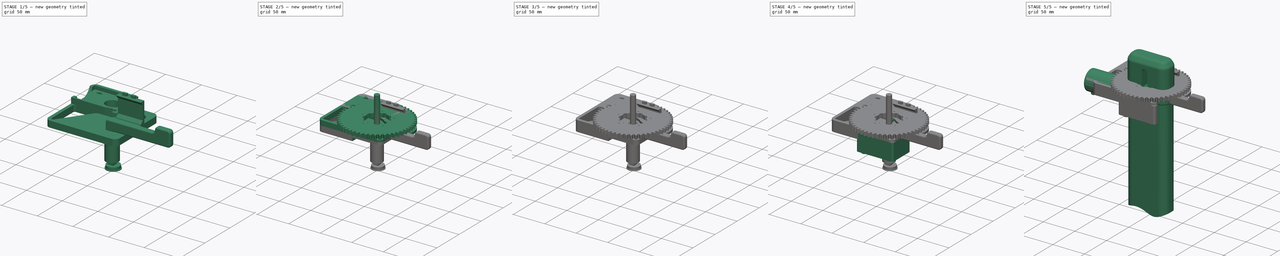
[diagram: build sequence overview — one tinted view per stage of 5, left to right]
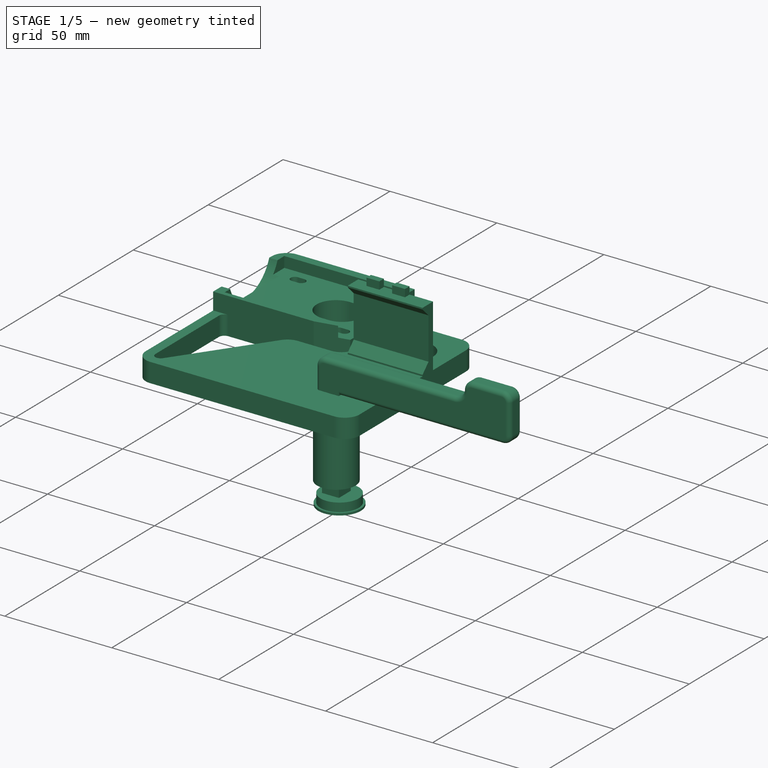
[diagram: stage 1 of 5 — iso view after this stage's code; geometry added in this stage tinted green]
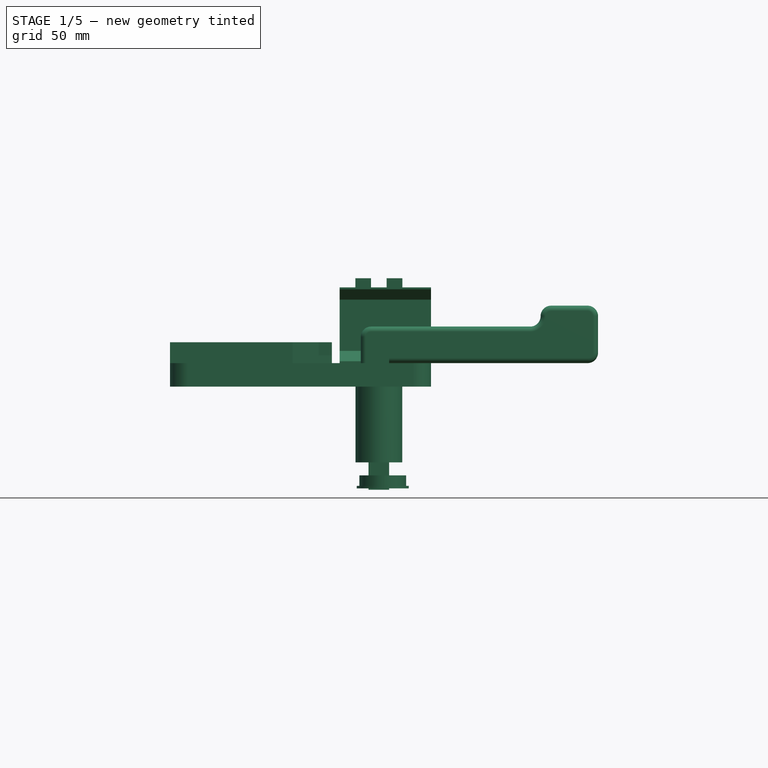
[diagram: stage 1 of 5 — front view after this stage's code; geometry added in this stage tinted green]
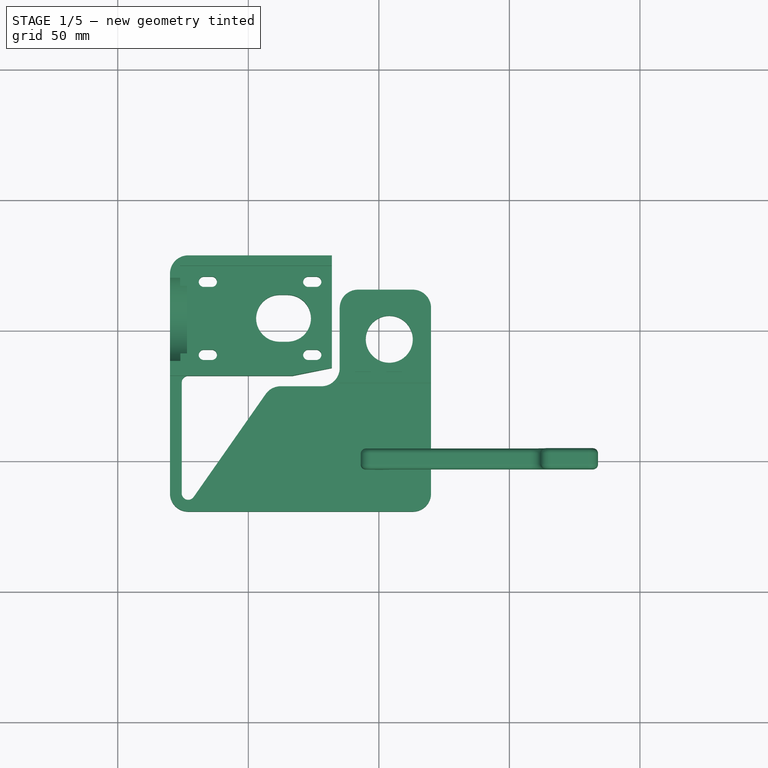
[diagram: stage 1 of 5 — top view after this stage's code; geometry added in this stage tinted green]
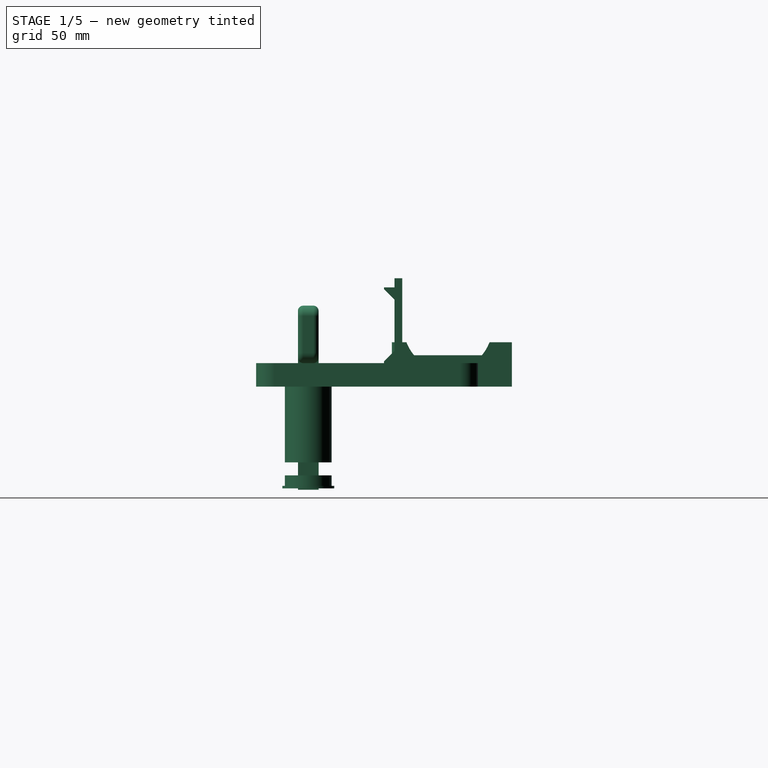
[diagram: stage 1 of 5 — right view after this stage's code; geometry added in this stage tinted green]
FCSTD DOCUMENT  (FreeCAD 0.20R27770 (Git))
Label: Motor-Assembly
License: All rights reserved
LicenseURL: http://en.wikipedia.org/wiki/All_rights_reserved
objects: Sketcher::SketchObject×34, Part::Feature×25, PartDesign::Pad×17, PartDesign::Pocket×16, PartDesign::Body×13, App::Part×9, Part::FeaturePython×9, PartDesign::Fillet×6, Part::Fillet×4, Part::MultiFuse×3, Part::Extrusion×3, PartDesign::Revolution×2, PartDesign::FeatureBase×2, PartDesign::Chamfer×2, Image::ImagePlane×1, Part::Cylinder×1
note: 180 computed .brp shape members not serialized (recipe doc carries the construction recipe); baked Part::Feature solids carry a one-line shape summary decoded from their .brp

FEATURE [PartDesign::Body] Body008  label="outer_mounting_plate"
  Group = -> [Sketch018,Pad011,Sketch020,Sketch019,Sketch021,Pocket007,Pocket008,Pad012,Sketch022,Pocket009]
  Origin = -> Origin016
  Placement = pos=(0,0,0.5) rot=(0,0,1;0rad)
  Tip = -> Pocket009
FEATURE [Sketcher::SketchObject] Sketch023
  FullyConstrained = true
  MapMode = 5
  Support = -> [XY_Plane017]
  sketch-geometry (67):
    g0: Circle CenterX=0 CenterY=0 CenterZ=0 NormalX=0 NormalY=0 NormalZ=1 AngleXU=0 Radius=4.25
    g1: LineSegment StartX=20 StartY=58 StartZ=0 EndX=20 EndY=-13 EndZ=0
    g2: LineSegment StartX=13 StartY=-20 StartZ=0 EndX=-73 EndY=-20 EndZ=0
    g3: LineSegment StartX=-80 StartY=-13 StartZ=0 EndX=-80 EndY=71 EndZ=0
    g4: LineSegment StartX=-73 StartY=78 StartZ=0 EndX=-18 EndY=78 EndZ=0
    g5: LineSegment StartX=-75.5 StartY=29.5 StartZ=0 EndX=-75.5 EndY=-13 EndZ=0
    g6: LineSegment StartX=-70.9521 StartY=-14.4339 StartZ=0 EndX=-43.3296 EndY=25.015 EndZ=0
    g7: LineSegment StartX=-37.5956 StartY=28 StartZ=0 EndX=-22 EndY=28 EndZ=0
    g8: LineSegment StartX=-15 StartY=35 StartZ=0 EndX=-15 EndY=58 EndZ=0
    g9: LineSegment StartX=-8 StartY=65 StartZ=0 EndX=13 EndY=65 EndZ=0
    g10: ArcOfCircle CenterX=-73 CenterY=-13 CenterZ=0 NormalX=0 NormalY=0 NormalZ=1 AngleXU=0 Radius=2.5 StartAngle=3.14159 EndAngle=5.67232
    g11: ArcOfCircle CenterX=13 CenterY=-13 CenterZ=0 NormalX=0 NormalY=0 NormalZ=1 AngleXU=0 Radius=7 StartAngle=4.71239 EndAngle=6.28319
    g12: GeomPoint X=20 Y=-20 Z=0
    g13: ArcOfCircle CenterX=13 CenterY=58 CenterZ=0 NormalX=0 NormalY=0 NormalZ=1 AngleXU=0 Radius=7 StartAngle=0 EndAngle=1.5708
    g14: GeomPoint X=20 Y=65 Z=0
    g15: ArcOfCircle CenterX=-37.5956 CenterY=21 CenterZ=0 NormalX=0 NormalY=0 NormalZ=1 AngleXU=0 Radius=7 StartAngle=1.5708 EndAngle=2.53073
    g16: GeomPoint X=-41.2396 Y=28 Z=0
    g17: ArcOfCircle CenterX=-73 CenterY=71 CenterZ=0 NormalX=0 NormalY=0 NormalZ=1 AngleXU=0 Radius=7 StartAngle=1.5708 EndAngle=3.14159
    g18: GeomPoint X=-80 Y=78 Z=0
    g19: ArcOfCircle CenterX=-8 CenterY=58 CenterZ=0 NormalX=0 NormalY=0 NormalZ=1 AngleXU=0 Radius=7 StartAngle=1.5708 EndAngle=3.14159
    g20: GeomPoint X=-15 Y=65 Z=0
    g21: ArcOfCircle CenterX=-22 CenterY=35 CenterZ=0 NormalX=0 NormalY=0 NormalZ=1 AngleXU=0 Radius=7 StartAngle=4.71239 EndAngle=6.28319
    g22: GeomPoint X=-15 Y=28 Z=0
    g23: ArcOfCircle CenterX=-73 CenterY=-13 CenterZ=0 NormalX=0 NormalY=0 NormalZ=1 AngleXU=0 Radius=7 StartAngle=3.14159 EndAngle=4.71239
    g24: GeomPoint X=-80 Y=-20 Z=0
    g25: Circle CenterX=4 CenterY=46 CenterZ=0 NormalX=0 NormalY=0 NormalZ=1 AngleXU=0 Radius=9
    g26: Circle CenterX=1 CenterY=46 CenterZ=0 NormalX=0 NormalY=0 NormalZ=1 AngleXU=0 Radius=9
    g27: LineSegment StartX=0.5 StartY=49.5 StartZ=0 EndX=7.5 EndY=49.5 EndZ=0
    g28: LineSegment StartX=7.5 StartY=49.5 StartZ=0 EndX=7.5 EndY=42.5 EndZ=0
    g29: LineSegment StartX=7.5 StartY=42.5 StartZ=0 EndX=0.5 EndY=42.5 EndZ=0
    g30: LineSegment StartX=0.5 StartY=42.5 StartZ=0 EndX=0.5 EndY=49.5 EndZ=0
    g31: LineSegment StartX=-36.5 StartY=54 StartZ=0 EndX=-65.5 EndY=54 EndZ=0
    g32: ArcOfCircle CenterX=-73 CenterY=29.5 CenterZ=0 NormalX=0 NormalY=0 NormalZ=1 AngleXU=0 Radius=2.5 StartAngle=1.5708 EndAngle=3.14159
    g33: LineSegment StartX=-18 StartY=35 StartZ=0 EndX=-18 EndY=78 EndZ=0
    g34: ArcOfCircle CenterX=-38 CenterY=54 CenterZ=0 NormalX=0 NormalY=0 NormalZ=1 AngleXU=0 Radius=9 StartAngle=1.5708 EndAngle=4.71239
    g35: ArcOfCircle CenterX=-35 CenterY=54 CenterZ=0 NormalX=0 NormalY=0 NormalZ=1 AngleXU=0 Radius=9 StartAngle=4.71239 EndAngle=7.85398
    g36: LineSegment StartX=-38 StartY=45 StartZ=0 EndX=-35 EndY=45 EndZ=0
    g37: LineSegment StartX=-35 StartY=63 StartZ=0 EndX=-38 EndY=63 EndZ=0
    g38: GeomPoint X=-65.5 Y=40 Z=0
    g39: GeomPoint X=-65.5 Y=68 Z=0
    g40: LineSegment StartX=-65.5 StartY=68 StartZ=0 EndX=-65.5 EndY=40 EndZ=0
    g41: ArcOfCircle CenterX=-67 CenterY=68 CenterZ=0 NormalX=0 NormalY=0 NormalZ=1 AngleXU=0 Radius=2 StartAngle=1.5708 EndAngle=4.71239
    g42: ArcOfCircle CenterX=-64 CenterY=68 CenterZ=0 NormalX=0 NormalY=0 NormalZ=1 AngleXU=0 Radius=2 StartAngle=4.71239 EndAngle=7.85398
    g43: LineSegment StartX=-67 StartY=66 StartZ=0 EndX=-64 EndY=66 EndZ=0
    g44: LineSegment StartX=-64 StartY=70 StartZ=0 EndX=-67 EndY=70 EndZ=0
    g45: ArcOfCircle CenterX=-67 CenterY=40 CenterZ=0 NormalX=0 NormalY=0 NormalZ=1 AngleXU=0 Radius=2 StartAngle=1.5708 EndAngle=4.71239
    g46: ArcOfCircle CenterX=-64 CenterY=40 CenterZ=0 NormalX=0 NormalY=0 NormalZ=1 AngleXU=0 Radius=2 StartAngle=4.71239 EndAngle=7.85398
    g47: LineSegment StartX=-67 StartY=38 StartZ=0 EndX=-64 EndY=38 EndZ=0
    g48: LineSegment StartX=-64 StartY=42 StartZ=0 EndX=-67 EndY=42 EndZ=0
    g49: LineSegment StartX=3 StartY=36 StartZ=0 EndX=9 EndY=36 EndZ=0
    g50: LineSegment StartX=9 StartY=36 StartZ=0 EndX=9 EndY=33 EndZ=0
    g51: LineSegment StartX=9 StartY=33 StartZ=0 EndX=3 EndY=33 EndZ=0
    g52: LineSegment StartX=3 StartY=33 StartZ=0 EndX=3 EndY=36 EndZ=0
    g53: LineSegment StartX=-9 StartY=36 StartZ=0 EndX=-3 EndY=36 EndZ=0
    g54: LineSegment StartX=-3 StartY=36 StartZ=0 EndX=-3 EndY=33 EndZ=0
    g55: LineSegment StartX=-3 StartY=33 StartZ=0 EndX=-9 EndY=33 EndZ=0
    g56: LineSegment StartX=-9 StartY=33 StartZ=0 EndX=-9 EndY=36 EndZ=0
    g57: ArcOfCircle CenterX=-27 CenterY=68 CenterZ=0 NormalX=0 NormalY=0 NormalZ=1 AngleXU=0 Radius=2 StartAngle=1.5708 EndAngle=4.71239
    g58: ArcOfCircle CenterX=-24 CenterY=68 CenterZ=0 NormalX=0 NormalY=0 NormalZ=1 AngleXU=0 Radius=2 StartAngle=4.71239 EndAngle=7.85398
    g59: LineSegment StartX=-27 StartY=66 StartZ=0 EndX=-24 EndY=66 EndZ=0
    g60: LineSegment StartX=-24 StartY=70 StartZ=0 EndX=-27 EndY=70 EndZ=0
    g61: ArcOfCircle CenterX=-27 CenterY=40 CenterZ=0 NormalX=0 NormalY=0 NormalZ=1 AngleXU=0 Radius=2 StartAngle=1.5708 EndAngle=4.71239
    g62: ArcOfCircle CenterX=-24 CenterY=40 CenterZ=0 NormalX=0 NormalY=0 NormalZ=1 AngleXU=0 Radius=2 StartAngle=4.71239 EndAngle=7.85398
    g63: LineSegment StartX=-27 StartY=38 StartZ=0 EndX=-24 EndY=38 EndZ=0
    g64: LineSegment StartX=-24 StartY=42 StartZ=0 EndX=-27 EndY=42 EndZ=0
    g65: LineSegment StartX=-73 StartY=32 StartZ=0 EndX=-33 EndY=32 EndZ=0
    g66: LineSegment StartX=-33 StartY=32 StartZ=0 EndX=-18 EndY=35 EndZ=0
  constraints (165):
    c: Coincident(g0,g-1)
    c: Diameter(g0) = 8.5
    c: Vertical(g1)
    c: Horizontal(g2)
    c: Vertical(g3)
    c: Horizontal(g4)
    c: Horizontal(g7)
    c: Vertical(g8)
    c: Horizontal(g9)
    c: Tangent(g5,g10) = -1.5708
    c: Tangent(g6,g10) = -1.5708
    c: Radius(g10) = 2.5
    c: PointOnObject(g12,g1)
    c: PointOnObject(g12,g2)
    c: Tangent(g1,g11) = 1.5708
    c: Tangent(g2,g11) = 1.5708
    c: PointOnObject(g14,g1)
    c: PointOnObject(g14,g9)
    c: Tangent(g1,g13) = 1.5708
    c: Tangent(g9,g13) = 1.5708
    c: PointOnObject(g16,g6)
    c: PointOnObject(g16,g7)
    c: Tangent(g6,g15) = 1.5708
    c: Tangent(g7,g15) = 1.5708
    c: PointOnObject(g18,g3)
    c: PointOnObject(g18,g4)
    c: Tangent(g3,g17) = 1.5708
    c: Tangent(g4,g17) = 1.5708
    c: PointOnObject(g20,g8)
    c: PointOnObject(g20,g9)
    c: Tangent(g8,g19) = 1.5708
    c: Tangent(g9,g19) = 1.5708
    c: PointOnObject(g22,g7)
    c: PointOnObject(g22,g8)
    c: Tangent(g7,g21) = -1.5708
    c: Tangent(g8,g21) = -1.5708
    c: Equal(g11,g13)
    c: Equal(g13,g19)
    c: Equal(g17,g15)
    c: DistanceY(g12) = -20
    c: DistanceX(g12) = 20
    c: DistanceX(g22) = -15
    c: DistanceY(g22) = 28
    c: PointOnObject(g24,g2)
    c: PointOnObject(g24,g3)
    c: Tangent(g2,g23) = 1.5708
    c: Tangent(g3,g23) = 1.5708
    c: Coincident(g23,g10)
    c: Equal(g11,g23)
    c: DistanceX(g24) = -80
    c: Radius(g23) = 7
    c: DistanceY(g12,g14) = 85
    c: Equal(g21,g15)
    c: Angle(g6) = 0.959931
    c: DistanceY(g24,g18) = 98
    c: Diameter(g25) = 18
    c: DistanceX(g25) = 4
    c: DistanceY(g25) = 46
    c: Horizontal(g25,g26)
    c: DistanceX(g26,g25) = 3
    c: Diameter(g26) = 18
    c: Coincident(g27,g28)
    c: Coincident(g28,g29)
    c: Coincident(g29,g30)
    c: Coincident(g30,g27)
    c: Horizontal(g27)
    c: Horizontal(g29)
    c: Vertical(g28)
    c: Vertical(g30)
    c: Equal(g29,g28)
    c: DistanceX(g29,g29) = 7
    c: Symmetric(g28,g27,g25)
    c: DistanceX(g31,g31) = 29
    c: Tangent(g32,g5) = -1.5708
    c: Tangent(g32,g65) = 1.5708
    c: Coincident(g66,g33)
    c: Vertical(g33)
    c: Coincident(g4,g33)
    c: Equal(g21,g19)
    c: Vertical(g5)
    c: Tangent(g34,g36) = -1.5708
    c: Tangent(g36,g35) = -1.5708
    c: Tangent(g35,g37) = -1.5708
    c: Tangent(g37,g34) = -1.5708
    c: Equal(g34,g35)
    c: PointOnObject(g34,g31)
    c: Horizontal(g36)
    c: Radius(g35) = 9
    c: DistanceX(g34,g35) = 3
    c: DistanceX(g34,g31) = 1.5
    c: DistanceX(g38) = -65.5
    c: DistanceY(g38) = 40
    c: Coincident(g40,g39)
    c: Coincident(g40,g38)
    c: Vertical(g40)
    c: DistanceY(g40,g40) = 28
    c: Symmetric(g38,g39,g31)
    c: Tangent(g41,g43) = -1.5708
    c: Tangent(g43,g42) = -1.5708
    c: Tangent(g42,g44) = -1.5708
    c: Tangent(g44,g41) = -1.5708
    c: Equal(g41,g42)
    c: Tangent(g45,g47) = -1.5708
    c: Tangent(g47,g46) = -1.5708
    c: Tangent(g46,g48) = -1.5708
    c: Tangent(g48,g45) = -1.5708
    c: Equal(g45,g46)
    c: Symmetric(g45,g46,g40)
    c: Symmetric(g41,g42,g40)
    c: Equal(g42,g46)
    c: Radius(g42) = 2
    c: Horizontal(g42,g39)
    c: Horizontal(g46,g38)
    c: Equal(g48,g43)
    c: DistanceX(g48,g48) = 3
    c: DistanceX(g4) = -18
    c: PointOnObject(g31,g40)
    c: Coincident(g49,g50)
    c: Coincident(g50,g51)
    c: Coincident(g51,g52)
    c: Coincident(g52,g49)
    c: Horizontal(g49)
    c: Horizontal(g51)
    c: Vertical(g50)
    c: Vertical(g52)
    c: Coincident(g53,g54)
    c: Coincident(g54,g55)
    c: Coincident(g55,g56)
    c: Coincident(g56,g53)
    c: Horizontal(g53)
    c: Horizontal(g55)
    c: Vertical(g54)
    c: Vertical(g56)
    c: Equal(g54,g52)
    c: Symmetric(g51,g54,g-2)
    c: Equal(g51,g55)
    c: DistanceY(g50,g50) = 3
    c: DistanceX(g51,g51) = 6
    c: DistanceX(g54,g51) = 6
    c: DistanceY(g51) = 33
    c: Equal(g32,g10)
    c: Tangent(g57,g59) = -1.5708
    c: Tangent(g59,g58) = -1.5708
    c: Tangent(g58,g60) = -1.5708
    c: Tangent(g60,g57) = -1.5708
    c: Equal(g57,g58)
    c: Horizontal(g59)
    c: Tangent(g61,g63) = -1.5708
    c: Tangent(g63,g62) = -1.5708
    c: Tangent(g62,g64) = -1.5708
    c: Tangent(g64,g61) = -1.5708
    c: Equal(g61,g62)
    c: Horizontal(g63)
    c: Equal(g46,g61)
    c: Equal(g61,g57)
    c: Symmetric(g57,g61,g31)
    c: Equal(g48,g64)
    c: Equal(g64,g59)
    c: Horizontal(g61,g46)
    c: DistanceX(g42,g58) = 40
    c: Coincident(g65,g66)
    c: Horizontal(g65)
    c: DistanceY(g65) = 32
    c: DistanceY(g65,g33) = 3
    c: DistanceX(g65,g33) = 15
FEATURE [PartDesign::Pad] Pad013
  Direction = (0,0,1)
  Length = 8
  Length2 = 9
  Profile = -> Sketch023
  ReferenceAxis = -> Sketch023 [N_Axis]
  Type = 4
FEATURE [Sketcher::SketchObject] Sketch025  label="gearbox_pocket001"
  AttachmentOffset = pos=(0,0,3) rot=(0,0,1;0rad)
  FullyConstrained = false
  MapMode = 5
  Placement = pos=(0,0,3) rot=(0,0,1;0rad)
  Support = -> [XY_Plane017]
  sketch-geometry (5):
    g0: LineSegment StartX=-76.1453 StartY=74 StartZ=0 EndX=-16.9401 EndY=74 EndZ=0
    g1: LineSegment StartX=-16.9401 StartY=74 StartZ=0 EndX=-16.9401 EndY=34 EndZ=0
    g2: LineSegment StartX=-16.9401 StartY=34 StartZ=0 EndX=-76 EndY=34 EndZ=0
    g3: LineSegment StartX=-76 StartY=34 StartZ=0 EndX=-76.1453 EndY=74 EndZ=0
    g4: LineSegment StartX=-76.0727 StartY=54 StartZ=0 EndX=-16.9401 EndY=54 EndZ=0
  constraints (13):
    c: Coincident(g0,g1)
    c: Coincident(g1,g2)
    c: Coincident(g2,g3)
    c: Coincident(g3,g0)
    c: Horizontal(g0)
    c: Vertical(g1)
    c: PointOnObject(g4,g3)
    c: PointOnObject(g4,g1)
    c: DistanceY(g1,g1) = 40
    c: DistanceX(g2) = -76
    c: Horizontal(g2)
    c: Symmetric(g1,g0,g4)
    c: DistanceY(g4) = 54
FEATURE [PartDesign::Pocket] Pocket010
  BaseFeature = -> Pad013
  Direction = (0,0,-1)
  Length = 4.5
  Length2 = 5
  Profile = -> Sketch025
  ReferenceAxis = -> Sketch025 [N_Axis]
  Reversed = true
  Type = 1
FEATURE [Sketcher::SketchObject] Sketch028  label="Motor-diameter"
  AttachmentOffset = pos=(0,0,-73.5) rot=(0,0,1;0rad)
  FullyConstrained = true
  MapMode = 5
  Placement = pos=(-73.5,1.63e-14,-1.63e-14) rot=(0.57735,0.57735,0.57735;2.0944rad)
  Support = -> [YZ_Plane017]
  sketch-geometry (1):
    g0: Circle CenterX=53.5 CenterY=14 CenterZ=0 NormalX=0 NormalY=0 NormalZ=1 AngleXU=0 Radius=17
  constraints (3):
    c: Diameter(g0) = 34
    c: DistanceX(g0) = 53.5
    c: DistanceY(g0) = 14
FEATURE [PartDesign::Pocket] Pocket011
  BaseFeature = -> Pocket010
  Direction = (-1,2e-16,-3e-16)
  Length = 5
  Length2 = 5
  Profile = -> Sketch028
  ReferenceAxis = -> Sketch028 [N_Axis]
  Type = 1
FEATURE [Sketcher::SketchObject] Sketch029  label="Arm-cutout"
  FullyConstrained = false
  MapMode = 5
  Support = -> [XY_Plane017]
  sketch-geometry (6):
    g0: LineSegment StartX=-85.0919 StartY=32 StartZ=0 EndX=-85.0919 EndY=-28.7811 EndZ=0
    g1: LineSegment StartX=-85.0919 StartY=-28.7811 StartZ=0 EndX=33.933 EndY=-28.7811 EndZ=0
    g2: LineSegment StartX=33.933 StartY=-28.7811 StartZ=0 EndX=33.933 EndY=68.1416 EndZ=0
    g3: LineSegment StartX=33.933 StartY=68.1416 StartZ=0 EndX=-16 EndY=68.1416 EndZ=0
    g4: LineSegment StartX=-16 StartY=68.1416 StartZ=0 EndX=-16 EndY=32 EndZ=0
    g5: LineSegment StartX=-16 StartY=32 StartZ=0 EndX=-85.0919 EndY=32 EndZ=0
  constraints (14):
    c: Vertical(g0)
    c: Coincident(g0,g1)
    c: Horizontal(g1)
    c: Coincident(g1,g2)
    c: Vertical(g2)
    c: Coincident(g2,g3)
    c: Horizontal(g3)
    c: Coincident(g3,g4)
    c: Vertical(g4)
    c: Coincident(g4,g5)
    c: Coincident(g5,g0)
    c: Horizontal(g5)
    c: DistanceY(g4) = 32
    c: DistanceX(g4) = -16
FEATURE [PartDesign::Pocket] Pocket012
  BaseFeature = -> Pocket011
  Direction = (0,0,-1)
  Length = 5
  Length2 = 5
  Profile = -> Sketch029
  ReferenceAxis = -> Sketch029 [N_Axis]
  Reversed = true
  Type = 1
FEATURE [PartDesign::Body] Body009  label="inner_mounting_plate"
  Group = -> [Sketch023,Pad013,Sketch025,Pocket010,Sketch028,Pocket011,Sketch029,Pocket012,Sketch030,Pocket013,Sketch031,Pad014,Sketch032,Pocket014]
  Origin = -> Origin017
  Placement = pos=(0,0,-28.5) rot=(0,0,1;0rad)
  Tip = -> Pocket014
FEATURE [Sketcher::SketchObject] Sketch033
  FullyConstrained = true
  MapMode = 5
  Placement = pos=(0,0,0) rot=(0.57735,0.57735,0.57735;2.0944rad)
  Support = -> [YZ_Plane018]
  sketch-geometry (12):
    g0: LineSegment StartX=36 StartY=-4 StartZ=0 EndX=36 EndY=32.5 EndZ=0
    g1: LineSegment StartX=36 StartY=32.5 StartZ=0 EndX=33 EndY=32.5 EndZ=0
    g2: LineSegment StartX=33 StartY=32.5 StartZ=0 EndX=33 EndY=29 EndZ=0
    g3: LineSegment StartX=33 StartY=29 StartZ=0 EndX=29 EndY=29 EndZ=0
    g4: LineSegment StartX=29 StartY=29 StartZ=0 EndX=29 EndY=28.3 EndZ=0
    g5: LineSegment StartX=29 StartY=28.3 StartZ=0 EndX=33 EndY=24.3 EndZ=0
    g6: LineSegment StartX=33 StartY=24.3 StartZ=0 EndX=33 EndY=4.7 EndZ=0
    g7: LineSegment StartX=33 StartY=4.7 StartZ=0 EndX=29 EndY=0.7 EndZ=0
    g8: LineSegment StartX=29 StartY=0.7 StartZ=0 EndX=29 EndY=0 EndZ=0
    g9: LineSegment StartX=29 StartY=0 StartZ=0 EndX=33 EndY=0 EndZ=0
    g10: LineSegment StartX=33 StartY=0 StartZ=0 EndX=33 EndY=-4 EndZ=0
    g11: LineSegment StartX=33 StartY=-4 StartZ=0 EndX=36 EndY=-4 EndZ=0
  constraints (36):
    c: Vertical(g0)
    c: Coincident(g0,g1)
    c: Coincident(g1,g2)
    c: Coincident(g2,g3)
    c: Horizontal(g3)
    c: Coincident(g3,g4)
    c: Coincident(g4,g5)
    c: Coincident(g5,g6)
    c: Vertical(g6)
    c: Coincident(g6,g7)
    c: Coincident(g7,g8)
    c: PointOnObject(g8,g-1)
    c: Coincident(g8,g9)
    c: PointOnObject(g9,g-1)
    c: Coincident(g9,g10)
    c: Vertical(g10)
    c: Coincident(g10,g11)
    c: Horizontal(g11)
    c: Coincident(g11,g0)
    c: DistanceX(g0) = 36
    c: DistanceY(g0) = -4
    c: DistanceY(g0,g0) = 36.5
    c: Horizontal(g1)
    c: Vertical(g2)
    c: Equal(g1,g11)
    c: Vertical(g9,g6)
    c: DistanceY(g2,g2) = 3.5
    c: DistanceX(g1,g1) = 3
    c: Equal(g9,g3)
    c: Vertical(g8)
    c: Equal(g8,g4)
    c: Vertical(g4)
    c: DistanceX(g3,g3) = 4
    c: Angle(g5) = -0.785398
    c: DistanceY(g4,g4) = 0.7
    c: Perpendicular(g7,g5)
FEATURE [PartDesign::Pad] Pad015
  Direction = (1,-2e-16,3e-16)
  Length = 20
  Length2 = 15
  Placement = pos=(0,0,0) rot=(0.57735,0.57735,0.57735;2.0944rad)
  Profile = -> Sketch033
  ReferenceAxis = -> Sketch033 [N_Axis]
  Type = 4
FEATURE [Sketcher::SketchObject] Sketch034
  FullyConstrained = true
  MapMode = 5
  Placement = pos=(0,0,0) rot=(1,0,0;1.5708rad)
  Support = -> [XZ_Plane018]
  sketch-geometry (24):
    g0: LineSegment StartX=9 StartY=0 StartZ=0 EndX=21 EndY=0 EndZ=0
    g1: LineSegment StartX=21 StartY=0 StartZ=0 EndX=21 EndY=-5 EndZ=0
    g2: LineSegment StartX=21 StartY=-5 StartZ=0 EndX=9 EndY=-5 EndZ=0
    g3: LineSegment StartX=9 StartY=-5 StartZ=0 EndX=9 EndY=0 EndZ=0
    g4: LineSegment StartX=-3 StartY=0 StartZ=0 EndX=3 EndY=0 EndZ=0
    g5: LineSegment StartX=3 StartY=0 StartZ=0 EndX=3 EndY=-5 EndZ=0
    g6: LineSegment StartX=3 StartY=-5 StartZ=0 EndX=-3 EndY=-5 EndZ=0
    g7: LineSegment StartX=-3 StartY=-5 StartZ=0 EndX=-3 EndY=0 EndZ=0
    g8: LineSegment StartX=-9 StartY=0 StartZ=0 EndX=-17 EndY=0 EndZ=0
    g9: LineSegment StartX=-17 StartY=0 StartZ=0 EndX=-17 EndY=-5 EndZ=0
    g10: LineSegment StartX=-17 StartY=-5 StartZ=0 EndX=-9 EndY=-5 EndZ=0
    g11: LineSegment StartX=-9 StartY=-5 StartZ=0 EndX=-9 EndY=0 EndZ=0
    g12: LineSegment StartX=-17 StartY=34 StartZ=0 EndX=-9 EndY=34 EndZ=0
    g13: LineSegment StartX=-9 StartY=34 StartZ=0 EndX=-9 EndY=29 EndZ=0
    g14: LineSegment StartX=-9 StartY=29 StartZ=0 EndX=-17 EndY=29 EndZ=0
    g15: LineSegment StartX=-17 StartY=29 StartZ=0 EndX=-17 EndY=34 EndZ=0
    g16: LineSegment StartX=-3 StartY=34 StartZ=0 EndX=3 EndY=34 EndZ=0
    g17: LineSegment StartX=3 StartY=34 StartZ=0 EndX=3 EndY=29 EndZ=0
    g18: LineSegment StartX=3 StartY=29 StartZ=0 EndX=-3 EndY=29 EndZ=0
    g19: LineSegment StartX=-3 StartY=29 StartZ=0 EndX=-3 EndY=34 EndZ=0
    g20: LineSegment StartX=9 StartY=34 StartZ=0 EndX=21 EndY=34 EndZ=0
    g21: LineSegment StartX=21 StartY=34 StartZ=0 EndX=21 EndY=29 EndZ=0
    g22: LineSegment StartX=21 StartY=29 StartZ=0 EndX=9 EndY=29 EndZ=0
    g23: LineSegment StartX=9 StartY=29 StartZ=0 EndX=9 EndY=34 EndZ=0
  constraints (70):
    c: Coincident(g0,g1)
    c: Coincident(g1,g2)
    c: Coincident(g2,g3)
    c: Coincident(g3,g0)
    c: Horizontal(g0)
    c: Horizontal(g2)
    c: Vertical(g1)
    c: Vertical(g3)
    c: PointOnObject(g0,g-1)
    c: Coincident(g4,g5)
    c: Coincident(g5,g6)
    c: Coincident(g6,g7)
    c: Coincident(g7,g4)
    c: Horizontal(g6)
    c: Vertical(g5)
    c: Vertical(g7)
    c: PointOnObject(g4,g-1)
    c: Coincident(g8,g9)
    c: Coincident(g9,g10)
    c: Coincident(g10,g11)
    c: Coincident(g11,g8)
    c: Horizontal(g8)
    c: Horizontal(g10)
    c: Vertical(g9)
    c: Vertical(g11)
    c: PointOnObject(g8,g-1)
    c: Equal(g11,g5)
    c: Equal(g5,g1)
    c: DistanceY(g1,g1) = 5
    c: Symmetric(g4,g4,g-2)
    c: DistanceX(g6,g6) = 6
    c: DistanceX(g10,g6) = 6
    c: DistanceX(g5,g2) = 6
    c: Coincident(g12,g13)
    c: Coincident(g13,g14)
    c: Coincident(g14,g15)
    c: Coincident(g15,g12)
    c: Horizontal(g12)
    c: Horizontal(g14)
    c: Vertical(g13)
    c: Vertical(g15)
    c: Coincident(g16,g17)
    c: Coincident(g17,g18)
    c: Coincident(g18,g19)
    c: Coincident(g19,g16)
    c: Horizontal(g16)
    c: Vertical(g17)
    c: Vertical(g19)
    c: Coincident(g20,g21)
    c: Coincident(g21,g22)
    c: Coincident(g22,g23)
    c: Coincident(g23,g20)
    c: Horizontal(g20)
    c: Horizontal(g22)
    c: Vertical(g21)
    c: Vertical(g23)
    c: Equal(g21,g17)
    c: Equal(g17,g13)
    c: Equal(g13,g1)
    c: Equal(g0,g22)
    c: Symmetric(g17,g18,g-2)
    c: Equal(g4,g18)
    c: Horizontal(g22,g17)
    c: Horizontal(g17,g13)
    c: Equal(g8,g14)
    c: Vertical(g8,g13)
    c: Vertical(g0,g22)
    c: DistanceX(g2,g2) = 12
    c: DistanceX(g10,g10) = 8
    c: DistanceY(g21) = 29
FEATURE [PartDesign::Pocket] Pocket015
  BaseFeature = -> Pad015
  Direction = (0,1,-2e-16)
  Length = 5
  Length2 = 5
  Placement = pos=(0,0,0) rot=(0.57735,0.57735,0.57735;2.0944rad)
  Profile = -> Sketch034
  ReferenceAxis = -> Sketch034 [N_Axis]
  Type = 1
FEATURE [PartDesign::Body] Body010  label="bridge"
  Group = -> [Sketch033,Pad015,Sketch034,Pocket015]
  Origin = -> Origin018
  Placement = pos=(0,0,-28.5) rot=(0,0,1;0rad)
  Tip = -> Pocket015
FEATURE [Sketcher::SketchObject] Sketch035
  FullyConstrained = false
  MapMode = 5
  Support = -> [XY_Plane019]
  sketch-geometry (6):
    g0: Circle CenterX=0 CenterY=0 CenterZ=0 NormalX=0 NormalY=0 NormalZ=1 AngleXU=0 Radius=8.95
    g1: LineSegment StartX=-2.5 StartY=4 StartZ=0 EndX=5.5 EndY=4 EndZ=0
    g2: LineSegment StartX=5.5 StartY=4 StartZ=0 EndX=5.5 EndY=-4 EndZ=0
    g3: LineSegment StartX=5.5 StartY=-4 StartZ=0 EndX=-2.5 EndY=-4 EndZ=0
    g4: LineSegment StartX=-2.5 StartY=-4 StartZ=0 EndX=-2.5 EndY=4 EndZ=0
    g5: GeomPoint X=1.5 Y=0 Z=0
  constraints (14):
    c: Diameter(g0) = 17.9
    c: Coincident(g1,g2)
    c: Coincident(g2,g3)
    c: Coincident(g3,g4)
    c: Coincident(g4,g1)
    c: Horizontal(g1)
    c: Horizontal(g3)
    c: Vertical(g4)
    c: Equal(g3,g2)
    c: DistanceX(g3,g3) = 8
    c: PointOnObject(g5,g-1)
    c: Symmetric(g1,g2,g5)
    c: Vertical(g2)
    c: DistanceX(g5) = 1.5
FEATURE [PartDesign::Pad] Pad016
  Direction = (0,0,1)
  Length = 38
  Length2 = 10
  Profile = -> Sketch035
  ReferenceAxis = -> Sketch035 [N_Axis]
  Reversed = true
  Type = 0
FEATURE [PartDesign::Body] Body011  label="Excenter mid"
  Group = -> [Sketch035,Pad016]
  Origin = -> Origin019
  Placement = pos=(-1.5,0,-5) rot=(0,0,1;0rad)
  Tip = -> Pad016
FEATURE [Sketcher::SketchObject] Sketch036
  FullyConstrained = true
  MapMode = 5
  Placement = pos=(0,0,0) rot=(1,0,0;1.5708rad)
  Support = -> [XZ_Plane020]
  sketch-geometry (7):
    g0: GeomPoint X=8.95 Y=5 Z=0
    g1: LineSegment StartX=0 StartY=0 StartZ=0 EndX=0 EndY=5 EndZ=0
    g2: LineSegment StartX=0 StartY=5 StartZ=0 EndX=-8.95 EndY=5 EndZ=0
    g3: LineSegment StartX=-8.95 StartY=5 StartZ=0 EndX=-8.95 EndY=1 EndZ=0
    g4: LineSegment StartX=-8.95 StartY=1 StartZ=0 EndX=-9.95 EndY=1 EndZ=0
    g5: LineSegment StartX=-9.95 StartY=1 StartZ=0 EndX=-9.95 EndY=0 EndZ=0
    g6: LineSegment StartX=-9.95 StartY=0 StartZ=0 EndX=0 EndY=0 EndZ=0
  constraints (18):
    c: Coincident(g-1,g1)
    c: Vertical(g1)
    c: Coincident(g1,g2)
    c: Horizontal(g2)
    c: Coincident(g2,g3)
    c: Vertical(g3)
    c: Coincident(g3,g4)
    c: Coincident(g4,g5)
    c: PointOnObject(g5,g-1)
    c: Vertical(g5)
    c: Coincident(g5,g6)
    c: Coincident(g6,g1)
    c: Horizontal(g4)
    c: DistanceX(g4,g4) = 1
    c: Equal(g5,g4)
    c: DistanceY(g3,g3) = 4
    c: Symmetric(g2,g0,g-2)
    c: DistanceX(g2,g0) = 17.9
FEATURE [PartDesign::Revolution] Revolution001
  Angle = 360
  Axis = (0,2e-16,1)
  Base = (0,0,0)
  Placement = pos=(0,0,0) rot=(1,0,0;1.5708rad)
  Profile = -> Sketch036
  ReferenceAxis = -> Sketch036 [V_Axis]
FEATURE [Sketcher::SketchObject] Sketch037
  FullyConstrained = true
  MapMode = 5
  Support = -> [XY_Plane020]
  sketch-geometry (5):
    g0: LineSegment StartX=-5.5 StartY=4 StartZ=0 EndX=2.5 EndY=4 EndZ=0
    g1: LineSegment StartX=2.5 StartY=4 StartZ=0 EndX=2.5 EndY=-4 EndZ=0
    g2: LineSegment StartX=2.5 StartY=-4 StartZ=0 EndX=-5.5 EndY=-4 EndZ=0
    g3: LineSegment StartX=-5.5 StartY=-4 StartZ=0 EndX=-5.5 EndY=4 EndZ=0
    g4: GeomPoint X=-1.5 Y=0 Z=0
  constraints (13):
    c: Coincident(g0,g1)
    c: Coincident(g1,g2)
    c: Coincident(g2,g3)
    c: Coincident(g3,g0)
    c: Horizontal(g0)
    c: Horizontal(g2)
    c: Vertical(g1)
    c: Vertical(g3)
    c: PointOnObject(g4,g-1)
    c: Symmetric(g1,g0,g4)
    c: Equal(g2,g1)
    c: DistanceX(g2,g2) = 8
    c: DistanceX(g4,g-1) = 1.5
FEATURE [PartDesign::Pocket] Pocket016
  BaseFeature = -> Revolution001
  Direction = (0,0,-1)
  Length = 5
  Length2 = 5
  Placement = pos=(0,0,0) rot=(1,0,0;1.5708rad)
  Profile = -> Sketch037
  ReferenceAxis = -> Sketch037 [N_Axis]
  Reversed = true
  Type = 1
FEATURE [PartDesign::Body] Body012  label="Excenter endcap"
  Group = -> [Sketch036,Revolution001,Sketch037,Pocket016]
  Origin = -> Origin020
  Placement = pos=(1.5,-6.7e-15,-5.3e-15) rot=(1,0,0;3.14159rad)
  Tip = -> Pocket016
FEATURE [Part::FeaturePython] Clone006  label="Excenter endcap001"  # Draft clone (typed FeaturePython)
  AttacherType = Attacher::AttachEngine3D
  Fuse = false
  Objects = -> [Body012]
  Placement = pos=(1.5,-1.42e-14,-48) rot=(0,0,1;0rad)
  Scale = (1,1,1)
FEATURE [Sketcher::SketchObject] Sketch038
  FullyConstrained = true
  MapMode = 5
  Placement = pos=(0,0,0) rot=(1,0,0;1.5708rad)
  Support = -> [XZ_Plane021]
  sketch-geometry (17):
    g0: LineSegment StartX=-3.95 StartY=-48.5 StartZ=0 EndX=3.95 EndY=-48.5 EndZ=0
    g1: LineSegment StartX=3.95 StartY=-48.5 StartZ=0 EndX=3.95 EndY=0 EndZ=0
    g2: LineSegment StartX=3.95 StartY=0 StartZ=0 EndX=79.95 EndY=0 EndZ=0
    g3: LineSegment StartX=83.95 StartY=4 StartZ=0 EndX=83.95 EndY=18 EndZ=0
    g4: ArcOfCircle CenterX=-2.95 CenterY=10 CenterZ=0 NormalX=0 NormalY=0 NormalZ=1 AngleXU=0 Radius=4 StartAngle=1.5708 EndAngle=3.14159
    g5: GeomPoint X=-6.95 Y=14 Z=0
    g6: ArcOfCircle CenterX=79.95 CenterY=18 CenterZ=0 NormalX=0 NormalY=0 NormalZ=1 AngleXU=0 Radius=4 StartAngle=0 EndAngle=1.5708
    g7: GeomPoint X=83.95 Y=22 Z=0
    g8: ArcOfCircle CenterX=79.95 CenterY=4 CenterZ=0 NormalX=0 NormalY=0 NormalZ=1 AngleXU=0 Radius=4 StartAngle=4.71239 EndAngle=6.28319
    g9: GeomPoint X=83.95 Y=0 Z=0
    g10: LineSegment StartX=-6.95 StartY=10 StartZ=0 EndX=-6.95 EndY=0 EndZ=0
    g11: LineSegment StartX=-6.95 StartY=0 StartZ=0 EndX=-3.95 EndY=0 EndZ=0
    g12: LineSegment StartX=-3.95 StartY=0 StartZ=0 EndX=-3.95 EndY=-48.5 EndZ=0
    g13: LineSegment StartX=57.95 StartY=14 StartZ=0 EndX=-2.95 EndY=14 EndZ=0
    g14: LineSegment StartX=79.95 StartY=22 StartZ=0 EndX=65.95 EndY=22 EndZ=0
    g15: ArcOfCircle CenterX=65.95 CenterY=18 CenterZ=0 NormalX=0 NormalY=0 NormalZ=1 AngleXU=0 Radius=4 StartAngle=1.5708 EndAngle=3.14159
    g16: ArcOfCircle CenterX=57.95 CenterY=18 CenterZ=0 NormalX=0 NormalY=0 NormalZ=1 AngleXU=0 Radius=4 StartAngle=4.71239 EndAngle=6.28319
  constraints (43):
    c: Coincident(g12,g0)
    c: Coincident(g0,g1)
    c: Vertical(g1)
    c: Coincident(g1,g2)
    c: Horizontal(g2)
    c: Vertical(g3)
    c: Symmetric(g0,g12,g-2)
    c: DistanceX(g0,g0) = 7.9
    c: DistanceX(g2,g9) = 80
    c: PointOnObject(g1,g-1)
    c: Tangent(g10,g4) = -1.5708
    c: Tangent(g13,g4) = -1.5708
    c: PointOnObject(g7,g3)
    c: Tangent(g3,g6) = -1.5708
    c: Tangent(g14,g6) = -1.5708
    c: PointOnObject(g9,g2)
    c: PointOnObject(g9,g3)
    c: Tangent(g2,g8) = -1.5708
    c: Tangent(g3,g8) = -1.5708
    c: Equal(g6,g8)
    c: Equal(g8,g4)
    c: Radius(g6) = 4
    c: DistanceY(g1,g1) = 48.5
    c: Coincident(g10,g11)
    c: Vertical(g10)
    c: PointOnObject(g5,g10)
    c: Coincident(g11,g12)
    c: Vertical(g12)
    c: PointOnObject(g11,g-1)
    c: Horizontal(g11)
    c: DistanceX(g11,g11) = 3
    c: Horizontal(g13)
    c: PointOnObject(g5,g13)
    c: Horizontal(g14)
    c: PointOnObject(g7,g14)
    c: DistanceY(g5) = 14
    c: Tangent(g14,g15) = -1.5708
    c: Tangent(g13,g16) = 1.5708
    c: Equal(g8,g16)
    c: Equal(g16,g15)
    c: Tangent(g16,g15) = 1.5708
    c: Horizontal(g16,g15)
    c: DistanceX(g15,g3) = 22
FEATURE [PartDesign::Pad] Pad017
  Direction = (0,-1,2e-16)
  Length = 7.9
  Length2 = 10
  Midplane = true
  Placement = pos=(0,0,0) rot=(1,0,0;1.5708rad)
  Profile = -> Sketch038
  ReferenceAxis = -> Sketch038 [N_Axis]
  Type = 0
FEATURE [PartDesign::Fillet] Fillet009
  Base = -> Pad017 [Edge37,Edge36]
  BaseFeature = -> Pad017
  Placement = pos=(0,0,0) rot=(1,0,0;1.5708rad)
  Radius = 2
  SupportTransform = false
  UseAllEdges = false
FEATURE [PartDesign::Body] Body013  label="Excenter Shaft+Lever"
  Group = -> [Sketch038,Pad017,Fillet009]
  Origin = -> Origin021
  Tip = -> Fillet009
FEATURE [App::Part] Part008  label="Excenter"
  Group = -> [Body013,Clone006,Body012,Body011]
  Origin = -> Origin022
  Placement = pos=(5.12699,45.2723,-39) rot=(0.906308,-0.422618,0;3.14159rad)
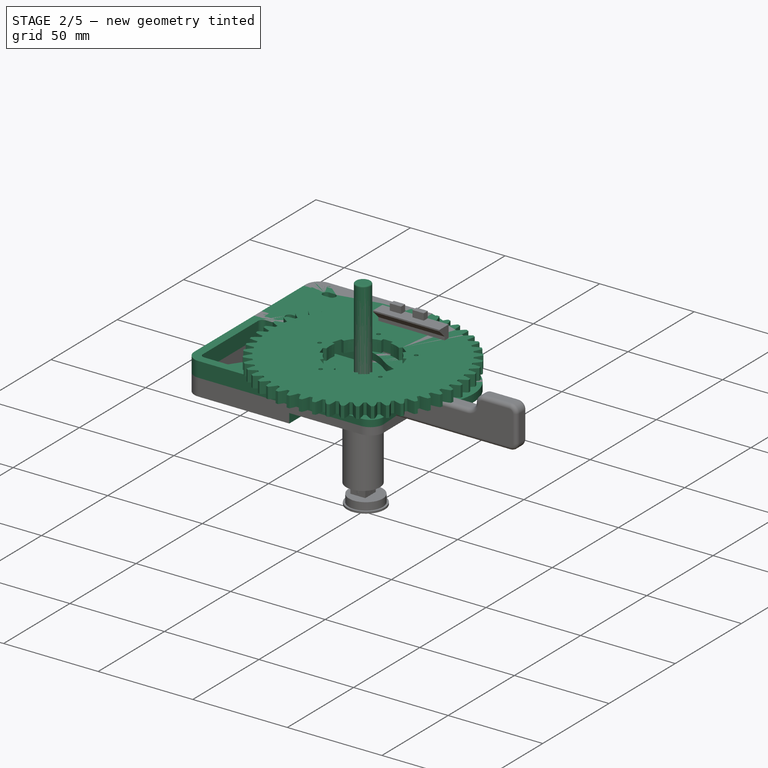
[diagram: stage 2 of 5 — iso view after this stage's code; geometry added in this stage tinted green]
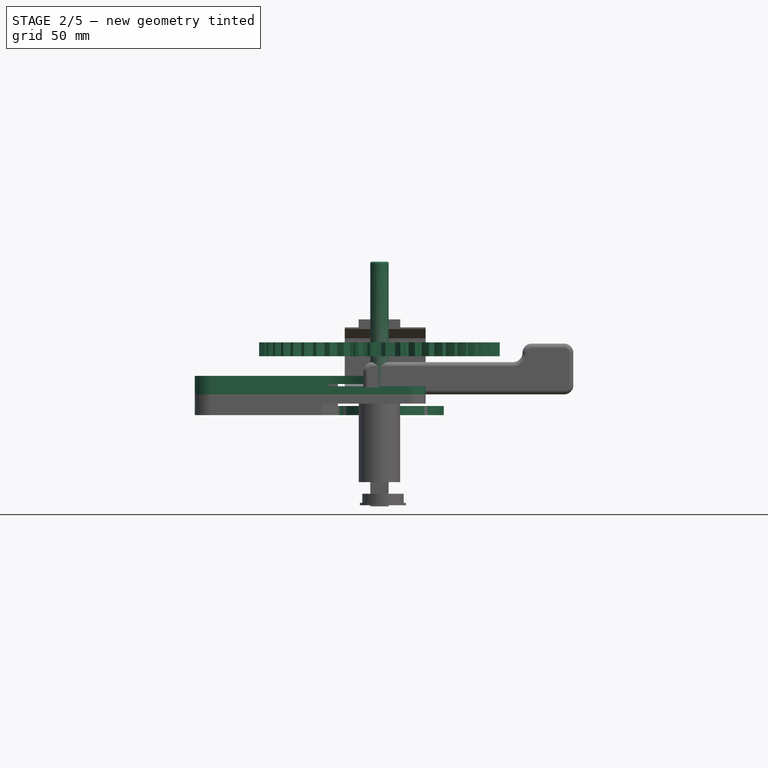
[diagram: stage 2 of 5 — front view after this stage's code; geometry added in this stage tinted green]
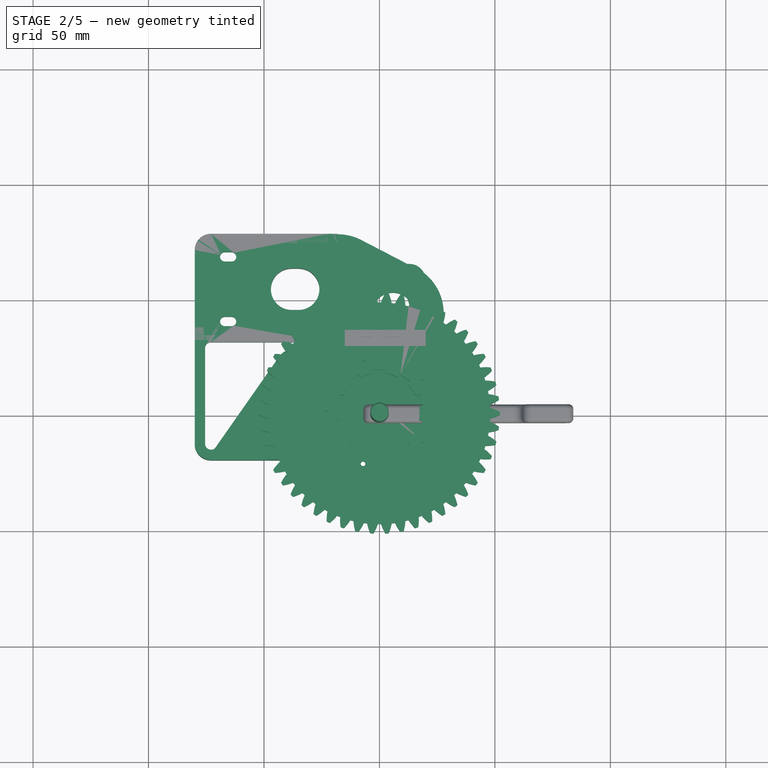
[diagram: stage 2 of 5 — top view after this stage's code; geometry added in this stage tinted green]
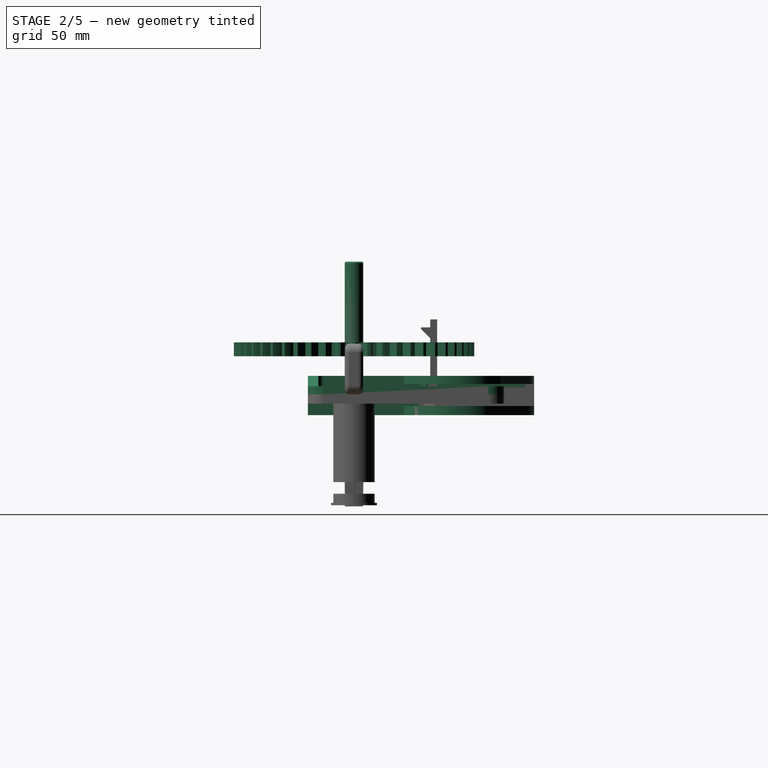
[diagram: stage 2 of 5 — right view after this stage's code; geometry added in this stage tinted green]
FEATURE [Part::FeaturePython] Tube002  # WARN: FeaturePython — macro-defined, semantics opaque (R4)
  AttacherType = Attacher::AttachEngine3D
  Height = 1.5
  InnerRadius = 4.25
  OuterRadius = 8
FEATURE [Part::Feature] path3757_1
  shape: bbox 4.189 x 2e-07 x 2e-07 mm, 0 faces, 0 solids (baked)
FEATURE [Part::Feature] path3757_1001
  shape: bbox 2e-07 x 4.189 x 2e-07 mm, 0 faces, 0 solids (baked)
FEATURE [Part::Feature] path5240_7
  shape: bbox 104.2 x 104.1 x 2e-07 mm, 0 faces, 0 solids (baked)
FEATURE [Part::Feature] path5240_7001
  shape: bbox 2.229 x 2.229 x 2e-07 mm, 0 faces, 0 solids (baked)
FEATURE [Part::Feature] path5240_7002
  shape: bbox 2.208 x 2.208 x 2e-07 mm, 0 faces, 0 solids (baked)
FEATURE [Part::Feature] path5240_7003
  shape: bbox 2.208 x 2.208 x 2e-07 mm, 0 faces, 0 solids (baked)
FEATURE [Part::Feature] path5240_7004
  shape: bbox 2.229 x 2.229 x 2e-07 mm, 0 faces, 0 solids (baked)
FEATURE [Part::Feature] path5240_7005
  shape: bbox 2 x 2 x 2e-07 mm, 0 faces, 0 solids (baked)
FEATURE [Part::Feature] path5240_7006
  shape: bbox 37.56 x 37.9 x 2e-07 mm, 0 faces, 0 solids (baked)
FEATURE [Part::Feature] circle5244_5
  shape: bbox 100 x 100 x 2e-07 mm, 0 faces, 0 solids (baked)
FEATURE [Part::Feature] circle5244_5001
  shape: bbox 47 x 47 x 2e-07 mm, 0 faces, 0 solids (baked)
FEATURE [Part::MultiFuse] Fusion002
  Shapes = -> [path5240_7006,path5240_7005,path5240_7004,path5240_7003,path5240_7002,path5240_7001,path5240_7]
FEATURE [Part::Extrusion] Extrude002
  Base = -> Fusion002
  Dir = (0,0,1)
  DirMode = 2
  FaceMakerClass = Part::FaceMakerBullseye
  LengthFwd = 6
  LengthRev = 0
  Solid = true
  Symmetric = false
FEATURE [App::Part] Part006  label="Z50"
  Group = -> [path5240_7001,path5240_7002,path5240_7006,path5240_7005,path5240_7,path5240_7004,path5240_7003,Fusion002,Extrude002,circle5244_5001,circle5244_5,path3757_1001,path3757_1]
  Origin = -> Origin014
  Placement = pos=(0,0,10.5) rot=(0,0,1;0rad)
FEATURE [Part::FeaturePython] Clone005  label="Z50 001"  # Draft clone (typed FeaturePython)
  AttacherType = Attacher::AttachEngine3D
  Fuse = false
  Objects = -> [Part006]
  Placement = pos=(0,3e-15,22.5) rot=(1,0,0;3.14159rad)
  Scale = (1,1,1)
FEATURE [Part::Cylinder] Cylinder
  Angle = 360
  AttacherType = Attacher::AttachEngine3D
  FirstAngle = 0
  Height = 100
  Placement = pos=(0,0,-42.5) rot=(0,0,1;0rad)
  Radius = 4
  SecondAngle = 0
FEATURE [Part::Fillet] Fillet008  label="Shaft M8 x 100mm"
  Base = -> Cylinder
  Edges = 2 edges r=0.7: [Edge2,Edge3]
FEATURE [App::Part] Part007  label="Shaft + Z50x12mm"
  Group = -> [Clone005,Part006,Cylinder,Clone004,Tube002,Fillet007,Clone003,Tube001,Fillet006,Clone002,Clone001,Part004,Fillet008]
  Origin = -> Origin015
  Placement = pos=(0,0,0) rot=(0,0,1;0.523599rad)
FEATURE [Sketcher::SketchObject] Sketch018
  FullyConstrained = true
  MapMode = 5
  Support = -> [XY_Plane016]
  sketch-geometry (58):
    g0: Circle CenterX=0 CenterY=0 CenterZ=0 NormalX=0 NormalY=0 NormalZ=1 AngleXU=0 Radius=4.25
    g1: LineSegment StartX=20 StartY=58 StartZ=0 EndX=20 EndY=-13 EndZ=0
    g2: LineSegment StartX=13 StartY=-20 StartZ=0 EndX=-73 EndY=-20 EndZ=0
    g3: LineSegment StartX=-80 StartY=-13 StartZ=0 EndX=-80 EndY=71 EndZ=0
    g4: LineSegment StartX=-73 StartY=78 StartZ=0 EndX=-22 EndY=78 EndZ=0
    g5: LineSegment StartX=-75.5 StartY=28.5 StartZ=0 EndX=-75.5 EndY=-13 EndZ=0
    g6: LineSegment StartX=-70.9521 StartY=-14.4339 StartZ=0 EndX=-43.3296 EndY=25.015 EndZ=0
    g7: LineSegment StartX=-37.5956 StartY=28 StartZ=0 EndX=-22 EndY=28 EndZ=0
    g8: LineSegment StartX=-15 StartY=35 StartZ=0 EndX=-15 EndY=58 EndZ=0
    g9: LineSegment StartX=-8 StartY=65 StartZ=0 EndX=13 EndY=65 EndZ=0
    g10: ArcOfCircle CenterX=-73 CenterY=-13 CenterZ=0 NormalX=0 NormalY=0 NormalZ=1 AngleXU=0 Radius=2.5 StartAngle=3.14159 EndAngle=5.67232
    g11: ArcOfCircle CenterX=13 CenterY=-13 CenterZ=0 NormalX=0 NormalY=0 NormalZ=1 AngleXU=0 Radius=7 StartAngle=4.71239 EndAngle=6.28319
    g12: GeomPoint X=20 Y=-20 Z=0
    g13: ArcOfCircle CenterX=13 CenterY=58 CenterZ=0 NormalX=0 NormalY=0 NormalZ=1 AngleXU=0 Radius=7 StartAngle=-9e-16 EndAngle=1.5708
    g14: GeomPoint X=20 Y=65 Z=0
    g15: ArcOfCircle CenterX=-37.5956 CenterY=21 CenterZ=0 NormalX=0 NormalY=0 NormalZ=1 AngleXU=0 Radius=7 StartAngle=1.5708 EndAngle=2.53073
    g16: GeomPoint X=-41.2396 Y=28 Z=0
    g17: ArcOfCircle CenterX=-73 CenterY=71 CenterZ=0 NormalX=0 NormalY=0 NormalZ=1 AngleXU=0 Radius=7 StartAngle=1.5708 EndAngle=3.14159
    g18: GeomPoint X=-80 Y=78 Z=0
    g19: ArcOfCircle CenterX=-8 CenterY=58 CenterZ=0 NormalX=0 NormalY=0 NormalZ=1 AngleXU=0 Radius=7 StartAngle=1.5708 EndAngle=3.14159
    g20: GeomPoint X=-15 Y=65 Z=0
    g21: ArcOfCircle CenterX=-22 CenterY=35 CenterZ=0 NormalX=0 NormalY=0 NormalZ=1 AngleXU=0 Radius=7 StartAngle=4.71239 EndAngle=6.28319
    g22: GeomPoint X=-15 Y=28 Z=0
    g23: ArcOfCircle CenterX=-73 CenterY=-13 CenterZ=0 NormalX=0 NormalY=0 NormalZ=1 AngleXU=0 Radius=7 StartAngle=3.14159 EndAngle=4.71239
    g24: GeomPoint X=-80 Y=-20 Z=0
    g25: Circle CenterX=4 CenterY=46 CenterZ=0 NormalX=0 NormalY=0 NormalZ=1 AngleXU=0 Radius=9
    g26: Circle CenterX=1 CenterY=46 CenterZ=0 NormalX=0 NormalY=0 NormalZ=1 AngleXU=0 Radius=9
    g27: LineSegment StartX=0 StartY=50 StartZ=0 EndX=8 EndY=50 EndZ=0
    g28: LineSegment StartX=8 StartY=50 StartZ=0 EndX=8 EndY=42 EndZ=0
    g29: LineSegment StartX=8 StartY=42 StartZ=0 EndX=0 EndY=42 EndZ=0
    g30: LineSegment StartX=0 StartY=42 StartZ=0 EndX=0 EndY=50 EndZ=0
    g31: LineSegment StartX=-36.5 StartY=54 StartZ=0 EndX=-65.5 EndY=54 EndZ=0
    g32: ArcOfCircle CenterX=-73 CenterY=28.5 CenterZ=0 NormalX=0 NormalY=0 NormalZ=1 AngleXU=0 Radius=2.5 StartAngle=1.5708 EndAngle=3.14159
    g33: LineSegment StartX=-73 StartY=31 StartZ=0 EndX=-22 EndY=31 EndZ=0
    g34: LineSegment StartX=-22 StartY=31 StartZ=0 EndX=-22 EndY=78 EndZ=0
    g35: ArcOfCircle CenterX=-38 CenterY=54 CenterZ=0 NormalX=0 NormalY=0 NormalZ=1 AngleXU=0 Radius=9 StartAngle=1.5708 EndAngle=4.71239
    g36: ArcOfCircle CenterX=-35 CenterY=54 CenterZ=0 NormalX=0 NormalY=0 NormalZ=1 AngleXU=0 Radius=9 StartAngle=4.71239 EndAngle=7.85398
    g37: LineSegment StartX=-38 StartY=45 StartZ=0 EndX=-35 EndY=45 EndZ=0
    g38: LineSegment StartX=-35 StartY=63 StartZ=0 EndX=-38 EndY=63 EndZ=0
    g39: GeomPoint X=-65.5 Y=40 Z=0
    g40: GeomPoint X=-65.5 Y=68 Z=0
    g41: LineSegment StartX=-65.5 StartY=68 StartZ=0 EndX=-65.5 EndY=40 EndZ=0
    g42: ArcOfCircle CenterX=-67 CenterY=68 CenterZ=0 NormalX=0 NormalY=0 NormalZ=1 AngleXU=0 Radius=2 StartAngle=1.5708 EndAngle=4.71239
    g43: ArcOfCircle CenterX=-64 CenterY=68 CenterZ=0 NormalX=0 NormalY=0 NormalZ=1 AngleXU=0 Radius=2 StartAngle=4.71239 EndAngle=7.85398
    g44: LineSegment StartX=-67 StartY=66 StartZ=0 EndX=-64 EndY=66 EndZ=0
    g45: LineSegment StartX=-64 StartY=70 StartZ=0 EndX=-67 EndY=70 EndZ=0
    g46: ArcOfCircle CenterX=-67 CenterY=40 CenterZ=0 NormalX=0 NormalY=0 NormalZ=1 AngleXU=0 Radius=2 StartAngle=1.5708 EndAngle=4.71239
    g47: ArcOfCircle CenterX=-64 CenterY=40 CenterZ=0 NormalX=0 NormalY=0 NormalZ=1 AngleXU=0 Radius=2 StartAngle=4.71239 EndAngle=7.85398
    g48: LineSegment StartX=-67 StartY=38 StartZ=0 EndX=-64 EndY=38 EndZ=0
    g49: LineSegment StartX=-64 StartY=42 StartZ=0 EndX=-67 EndY=42 EndZ=0
    g50: LineSegment StartX=3 StartY=36 StartZ=0 EndX=9 EndY=36 EndZ=0
    g51: LineSegment StartX=9 StartY=36 StartZ=0 EndX=9 EndY=33 EndZ=0
    g52: LineSegment StartX=9 StartY=33 StartZ=0 EndX=3 EndY=33 EndZ=0
    g53: LineSegment StartX=3 StartY=33 StartZ=0 EndX=3 EndY=36 EndZ=0
    g54: LineSegment StartX=-9 StartY=36 StartZ=0 EndX=-3 EndY=36 EndZ=0
    g55: LineSegment StartX=-3 StartY=36 StartZ=0 EndX=-3 EndY=33 EndZ=0
    g56: LineSegment StartX=-3 StartY=33 StartZ=0 EndX=-9 EndY=33 EndZ=0
    g57: LineSegment StartX=-9 StartY=33 StartZ=0 EndX=-9 EndY=36 EndZ=0
  constraints (143):
    c: Coincident(g0,g-1)
    c: Diameter(g0) = 8.5
    c: Vertical(g1)
    c: Horizontal(g2)
    c: Vertical(g3)
    c: Horizontal(g4)
    c: Horizontal(g7)
    c: Vertical(g8)
    c: Horizontal(g9)
    c: Tangent(g5,g10) = -1.5708
    c: Tangent(g6,g10) = -1.5708
    c: Radius(g10) = 2.5
    c: PointOnObject(g12,g1)
    c: PointOnObject(g12,g2)
    c: Tangent(g1,g11) = 1.5708
    c: Tangent(g2,g11) = 1.5708
    c: PointOnObject(g14,g1)
    c: PointOnObject(g14,g9)
    c: Tangent(g1,g13) = 1.5708
    c: Tangent(g9,g13) = 1.5708
    c: PointOnObject(g16,g6)
    c: PointOnObject(g16,g7)
    c: Tangent(g6,g15) = 1.5708
    c: Tangent(g7,g15) = 1.5708
    c: PointOnObject(g18,g3)
    c: PointOnObject(g18,g4)
    c: Tangent(g3,g17) = 1.5708
    c: Tangent(g4,g17) = 1.5708
    c: PointOnObject(g20,g8)
    c: PointOnObject(g20,g9)
    c: Tangent(g8,g19) = 1.5708
    c: Tangent(g9,g19) = 1.5708
    c: PointOnObject(g22,g7)
    c: PointOnObject(g22,g8)
    c: Tangent(g7,g21) = -1.5708
    c: Tangent(g8,g21) = -1.5708
    c: Equal(g11,g13)
    c: Equal(g13,g19)
    c: Equal(g17,g15)
    c: DistanceY(g12) = -20
    c: DistanceX(g12) = 20
    c: DistanceX(g22) = -15
    c: DistanceY(g22) = 28
    c: PointOnObject(g24,g2)
    c: PointOnObject(g24,g3)
    c: Tangent(g2,g23) = 1.5708
    c: Tangent(g3,g23) = 1.5708
    c: Coincident(g23,g10)
    c: Equal(g11,g23)
    c: DistanceX(g24) = -80
    c: Radius(g23) = 7
    c: DistanceY(g12,g14) = 85
    c: Equal(g21,g15)
    c: Angle(g6) = 0.959931
    c: DistanceY(g24,g18) = 98
    c: Diameter(g25) = 18
    c: DistanceX(g25) = 4
    c: DistanceY(g25) = 46
    c: Horizontal(g25,g26)
    c: DistanceX(g26,g25) = 3
    c: Diameter(g26) = 18
    c: Coincident(g27,g28)
    c: Coincident(g28,g29)
    c: Coincident(g29,g30)
    c: Coincident(g30,g27)
    c: Horizontal(g27)
    c: Horizontal(g29)
    c: Vertical(g28)
    c: Vertical(g30)
    c: Equal(g29,g28)
    c: DistanceX(g29,g29) = 8
    c: Symmetric(g28,g27,g25)
    c: DistanceX(g31,g31) = 29
    c: Tangent(g32,g5) = -1.5708
    c: Tangent(g32,g33) = 1.5708
    c: Coincident(g33,g34)
    c: Vertical(g34)
    c: Coincident(g4,g34)
    c: Horizontal(g33)
    c: Equal(g21,g19)
    c: Vertical(g5)
    c: DistanceY(g33) = 31
    c: Tangent(g35,g37) = -1.5708
    c: Tangent(g37,g36) = -1.5708
    c: Tangent(g36,g38) = -1.5708
    c: Tangent(g38,g35) = -1.5708
    c: Equal(g35,g36)
    c: PointOnObject(g35,g31)
    c: Horizontal(g37)
    c: Radius(g36) = 9
    c: DistanceX(g35,g36) = 3
    c: DistanceX(g35,g31) = 1.5
    c: DistanceX(g39) = -65.5
    c: DistanceY(g39) = 40
    c: Coincident(g41,g40)
    c: Coincident(g41,g39)
    c: Vertical(g41)
    c: DistanceY(g41,g41) = 28
    c: Symmetric(g39,g40,g31)
    c: Tangent(g42,g44) = -1.5708
    c: Tangent(g44,g43) = -1.5708
    c: Tangent(g43,g45) = -1.5708
    c: Tangent(g45,g42) = -1.5708
    c: Equal(g42,g43)
    c: Tangent(g46,g48) = -1.5708
    c: Tangent(g48,g47) = -1.5708
    c: Tangent(g47,g49) = -1.5708
    c: Tangent(g49,g46) = -1.5708
    c: Equal(g46,g47)
    c: Symmetric(g46,g47,g41)
    c: Symmetric(g42,g43,g41)
    c: Equal(g43,g47)
    c: Radius(g43) = 2
    c: Horizontal(g43,g40)
    c: Horizontal(g47,g39)
    c: Equal(g49,g44)
    c: DistanceX(g49,g49) = 3
    c: DistanceX(g4) = -22
    c: PointOnObject(g31,g41)
    c: Coincident(g50,g51)
    c: Coincident(g51,g52)
    c: Coincident(g52,g53)
    c: Coincident(g53,g50)
    c: Horizontal(g50)
    c: Horizontal(g52)
    c: Vertical(g51)
    c: Vertical(g53)
    c: Coincident(g54,g55)
    c: Coincident(g55,g56)
    c: Coincident(g56,g57)
    c: Coincident(g57,g54)
    c: Horizontal(g54)
    c: Horizontal(g56)
    c: Vertical(g55)
    c: Vertical(g57)
    c: Equal(g55,g53)
    c: Symmetric(g52,g55,g-2)
    c: Equal(g52,g56)
    c: DistanceY(g51,g51) = 3
    c: DistanceX(g52,g52) = 6
    c: DistanceX(g55,g52) = 6
    c: DistanceY(g52) = 33
    c: Equal(g32,g10)
FEATURE [PartDesign::Pad] Pad011
  Direction = (0,0,1)
  Length = 8
  Length2 = 10
  Profile = -> Sketch018
  ReferenceAxis = -> Sketch018 [N_Axis]
  Type = 0
FEATURE [Sketcher::SketchObject] Sketch020  label="bot_pcocket"
  ExternalGeometry = -> [Pad011]
  FullyConstrained = false
  MapMode = 5
  Support = -> [XY_Plane016]
  sketch-geometry (5):
    g0: LineSegment StartX=-76 StartY=74 StartZ=0 EndX=-19.4231 EndY=74 EndZ=0
    g1: LineSegment StartX=-19.4231 StartY=74 StartZ=0 EndX=-19.4231 EndY=34 EndZ=0
    g2: LineSegment StartX=-19.4231 StartY=34 StartZ=0 EndX=-76 EndY=34 EndZ=0
    g3: LineSegment StartX=-76 StartY=34 StartZ=0 EndX=-76 EndY=74 EndZ=0
    g4: LineSegment StartX=-76 StartY=54 StartZ=0 EndX=-19.4231 EndY=54 EndZ=0
  constraints (14):
    c: Coincident(g0,g1)
    c: Coincident(g1,g2)
    c: Coincident(g2,g3)
    c: Coincident(g3,g0)
    c: Horizontal(g0)
    c: Horizontal(g2)
    c: Vertical(g1)
    c: PointOnObject(g4,g3)
    c: PointOnObject(g4,g1)
    c: Symmetric(g0,g2,g4)
    c: DistanceY(g1,g1) = 40
    c: PointOnObject(g-4,g4)
    c: Horizontal(g4)
    c: DistanceX(g2) = -76
FEATURE [PartDesign::Pocket] Pocket007
  BaseFeature = -> Pad011
  Direction = (0,0,-1)
  Length = 4.5
  Length2 = 5
  Profile = -> Sketch020
  ReferenceAxis = -> Sketch020 [N_Axis]
  Reversed = true
  Type = 0
FEATURE [Sketcher::SketchObject] Sketch019  label="top_pocket"
  ExternalGeometry = -> [Pad011]
  FullyConstrained = false
  MapMode = 5
  Placement = pos=(0,0,8) rot=(0,0,1;0rad)
  Support = -> [Pocket007]
  sketch-geometry (9):
    g0: LineSegment StartX=-73 StartY=-15.5 StartZ=0 EndX=-25.4715 EndY=-15.5 EndZ=0
    g1: LineSegment StartX=-25.4715 StartY=-15.5 StartZ=0 EndX=-25.4715 EndY=-22.2643 EndZ=0
    g2: LineSegment StartX=-25.4715 StartY=-22.2643 StartZ=0 EndX=22.6471 EndY=-22.2643 EndZ=0
    g3: LineSegment StartX=22.6471 StartY=-22.2643 StartZ=0 EndX=22.6471 EndY=72.2738 EndZ=0
    g4: LineSegment StartX=22.6471 StartY=72.2738 StartZ=0 EndX=-17.9217 EndY=72.2738 EndZ=0
    g5: LineSegment StartX=-73 StartY=-13 StartZ=0 EndX=-73 EndY=-15.5 EndZ=0
    g6: LineSegment StartX=-42.6949 StartY=30.3 StartZ=0 EndX=-73 EndY=-13 EndZ=0
    g7: LineSegment StartX=-17.9217 StartY=72.2738 StartZ=0 EndX=-17.9217 EndY=30.3 EndZ=0
    g8: LineSegment StartX=-17.9217 StartY=30.3 StartZ=0 EndX=-42.6949 EndY=30.3 EndZ=0
  constraints (19):
    c: Coincident(g5,g0) = -1.5708
    c: Coincident(g0,g1)
    c: Coincident(g1,g2)
    c: Horizontal(g2)
    c: Coincident(g2,g3)
    c: Vertical(g3)
    c: Coincident(g3,g4)
    c: Horizontal(g4)
    c: Coincident(g4,g7)
    c: Coincident(g6,g5)
    c: PointOnObject(g0,g-3)
    c: Vertical(g5)
    c: Horizontal(g0)
    c: Vertical(g1)
    c: Coincident(g6,g-3)
    c: Coincident(g8,g6)
    c: Coincident(g7,g8)
    c: Vertical(g7)
    c: Horizontal(g8)
FEATURE [PartDesign::Pocket] Pocket008
  BaseFeature = -> Pocket007
  Direction = (0,0,-1)
  Length = 4.5
  Length2 = 5
  Profile = -> Sketch019
  ReferenceAxis = -> Sketch019 [N_Axis]
  Type = 0
FEATURE [Sketcher::SketchObject] Sketch021  label="overlap"
  ExternalGeometry = -> [Pocket008]
  FullyConstrained = true
  MapMode = 5
  Placement = pos=(0,0,8) rot=(0,0,1;0rad)
  Support = -> [Pocket008]
  sketch-geometry (8):
    g0: LineSegment StartX=4 StartY=46 StartZ=0 EndX=5.82465 EndY=43.6187 EndZ=0
    g1: LineSegment StartX=4 StartY=46 StartZ=0 EndX=-73 EndY=-13 EndZ=0
    g2: Circle CenterX=5.82465 CenterY=43.6187 CenterZ=0 NormalX=0 NormalY=0 NormalZ=1 AngleXU=0 Radius=9
    g3: ArcOfCircle CenterX=5.82465 CenterY=43.6187 CenterZ=0 NormalX=0 NormalY=0 NormalZ=1 AngleXU=0 Radius=22 StartAngle=4.06201 EndAngle=7.43531
    g4: LineSegment StartX=-13.056 StartY=76.0999 StartZ=0 EndX=14.7686 EndY=63.7186 EndZ=0
    g5: ArcOfCircle CenterX=-22 CenterY=56 CenterZ=0 NormalX=0 NormalY=0 NormalZ=1 AngleXU=0 Radius=22 StartAngle=1.15213 EndAngle=1.5708
    g6: ArcOfCircle CenterX=-22 CenterY=7.0459 CenterZ=0 NormalX=0 NormalY=0 NormalZ=1 AngleXU=0 Radius=23.9541 StartAngle=0.920418 EndAngle=1.5708
    g7: LineSegment StartX=-22 StartY=78 StartZ=0 EndX=-22 EndY=31 EndZ=0
  constraints (19):
    c: Coincident(g1,g0)
    c: Perpendicular(g0,g1)
    c: Distance(g0) = 3
    c: Coincident(g2,g0)
    c: Diameter(g2) = 18
    c: Coincident(g3,g2)
    c: Tangent(g4,g3) = 1.5708
    c: Radius(g3) = 22
    c: Tangent(g6,g3) = 1.5708
    c: Tangent(g5,g4) = 1.5708
    c: Equal(g3,g5)
    c: Coincident(g7,g5)
    c: Coincident(g7,g6)
    c: Coincident(g6,g-5)
    c: Coincident(g5,g-5)
    c: Coincident(g0,g-4)
    c: Coincident(g1,g-3)
    c: PointOnObject(g6,g7)
    c: PointOnObject(g5,g7)
FEATURE [PartDesign::Pad] Pad012
  BaseFeature = -> Pocket008
  Direction = (0,0,1)
  Length = 3.5
  Length2 = 10
  Profile = -> Sketch021
  ReferenceAxis = -> Sketch021 [N_Axis]
  Reversed = true
  Type = 0
FEATURE [Sketcher::SketchObject] Sketch022
  FullyConstrained = false
  MapMode = 5
  Placement = pos=(0,0,0) rot=(1,0,0;1.5708rad)
  Support = -> [XZ_Plane016]
  sketch-geometry (5):
    g0: LineSegment StartX=0 StartY=3 StartZ=0 EndX=-25 EndY=3 EndZ=0
    g1: LineSegment StartX=-25 StartY=3 StartZ=0 EndX=-40.9316 EndY=8.43976 EndZ=0
    g2: LineSegment StartX=-40.9316 StartY=8.43976 StartZ=0 EndX=-40.9316 EndY=13.0938 EndZ=0
    g3: LineSegment StartX=-40.9316 StartY=13.0938 StartZ=0 EndX=-0.040726 EndY=13.0938 EndZ=0
    g4: LineSegment StartX=-0.040726 StartY=13.0938 StartZ=0 EndX=0 EndY=3 EndZ=0
  constraints (11):
    c: PointOnObject(g0,g-2)
    c: Horizontal(g0)
    c: Coincident(g0,g1)
    c: Coincident(g1,g2)
    c: Vertical(g2)
    c: Coincident(g2,g3)
    c: Horizontal(g3)
    c: Coincident(g3,g4)
    c: Coincident(g4,g0)
    c: DistanceY(g0) = 3
    c: DistanceX(g0) = -25
FEATURE [PartDesign::Pocket] Pocket009
  BaseFeature = -> Pad012
  Direction = (0,1,2e-16)
  Length = 5
  Length2 = 5
  Profile = -> Sketch022
  ReferenceAxis = -> Sketch022 [N_Axis]
  Reversed = true
  Type = 1
FEATURE [Sketcher::SketchObject] Sketch030  label="overlap-cutout"
  AttachmentOffset = pos=(0,0,-4) rot=(0,0,1;0rad)
  FullyConstrained = false
  MapMode = 5
  Placement = pos=(0,0,-4) rot=(0,0,1;0rad)
  Support = -> [XY_Plane017]
  sketch-geometry (6):
    g0: LineSegment StartX=30.8374 StartY=73.1921 StartZ=0 EndX=-15.7089 EndY=73.1921 EndZ=0
    g1: LineSegment StartX=-25 StartY=-27.8236 StartZ=0 EndX=30.8374 EndY=-27.8236 EndZ=0
    g2: LineSegment StartX=30.8374 StartY=-27.8236 StartZ=0 EndX=30.8374 EndY=73.1921 EndZ=0
    g3: LineSegment StartX=-15.7089 StartY=73.1921 StartZ=0 EndX=-15.7089 EndY=34.7281 EndZ=0
    g4: LineSegment StartX=-15.7089 StartY=34.7281 StartZ=0 EndX=-25 EndY=32 EndZ=0
    g5: LineSegment StartX=-25 StartY=32 StartZ=0 EndX=-25 EndY=-27.8236 EndZ=0
  constraints (13):
    c: Coincident(g0,g3)
    c: Coincident(g5,g1)
    c: Coincident(g1,g2)
    c: Coincident(g2,g0)
    c: Horizontal(g0)
    c: Horizontal(g1)
    c: Vertical(g2)
    c: Coincident(g3,g4)
    c: Vertical(g3)
    c: Coincident(g4,g5)
    c: Vertical(g5)
    c: DistanceY(g4) = 32
    c: DistanceX(g4) = -25
FEATURE [PartDesign::Pocket] Pocket013
  BaseFeature = -> Pocket012
  Direction = (0,0,-1)
  Length = 5
  Length2 = 5
  Profile = -> Sketch030
  ReferenceAxis = -> Sketch030 [N_Axis]
  Type = 1
FEATURE [Sketcher::SketchObject] Sketch031  label="overlap002"
  AttachmentOffset = pos=(0,0,-5) rot=(0,0,1;0rad)
  ExternalGeometry = -> [Pocket013]
  FullyConstrained = true
  MapMode = 5
  Placement = pos=(0,0,-5) rot=(0,0,1;0rad)
  Support = -> [XY_Plane017]
  sketch-geometry (8):
    g0: LineSegment StartX=4 StartY=46 StartZ=0 EndX=5.82465 EndY=43.6187 EndZ=0
    g1: LineSegment StartX=4 StartY=46 StartZ=0 EndX=-73 EndY=-13 EndZ=0
    g2: Circle CenterX=5.82465 CenterY=43.6187 CenterZ=0 NormalX=0 NormalY=0 NormalZ=1 AngleXU=0 Radius=9
    g3: ArcOfCircle CenterX=5.82465 CenterY=43.6187 CenterZ=0 NormalX=0 NormalY=0 NormalZ=1 AngleXU=0 Radius=22 StartAngle=3.68889 EndAngle=7.37471
    g4: LineSegment StartX=-7.85508 StartY=75.5213 StartZ=0 EndX=15.9696 EndY=63.14 EndZ=0
    g5: ArcOfCircle CenterX=-18 CenterY=56 CenterZ=0 NormalX=0 NormalY=0 NormalZ=1 AngleXU=0 Radius=22 StartAngle=1.09152 EndAngle=1.5708
    g6: ArcOfCircle CenterX=-18 CenterY=29.1002 CenterZ=0 NormalX=0 NormalY=0 NormalZ=1 AngleXU=0 Radius=5.89985 StartAngle=0.547296 EndAngle=1.5708
    g7: LineSegment StartX=-18 StartY=78 StartZ=0 EndX=-18 EndY=35 EndZ=0
  constraints (19):
    c: Coincident(g1,g0)
    c: Perpendicular(g0,g1)
    c: Distance(g0) = 3
    c: Coincident(g2,g0)
    c: Diameter(g2) = 18
    c: Coincident(g3,g2)
    c: Tangent(g4,g3) = 1.5708
    c: Radius(g3) = 22
    c: Tangent(g6,g3) = 1.5708
    c: Tangent(g5,g4) = 1.5708
    c: Equal(g3,g5)
    c: Coincident(g7,g5)
    c: Coincident(g7,g6)
    c: PointOnObject(g6,g7)
    c: PointOnObject(g5,g7)
    c: Coincident(g1,g-5)
    c: Coincident(g0,g-4)
    c: Coincident(g-3,g6)
    c: Coincident(g5,g-3)
FEATURE [PartDesign::Pad] Pad014
  BaseFeature = -> Pocket013
  Direction = (0,0,1)
  Length = 4
  Length2 = 10
  Profile = -> Sketch031
  ReferenceAxis = -> Sketch031 [N_Axis]
  Reversed = true
  Type = 0
FEATURE [Sketcher::SketchObject] Sketch032  label="counter sink"
  ExternalGeometry = -> [Pad014]
  FullyConstrained = true
  MapMode = 5
  Support = -> [XY_Plane017]
  sketch-geometry (16):
    g0: ArcOfCircle CenterX=-67 CenterY=40 CenterZ=0 NormalX=0 NormalY=0 NormalZ=1 AngleXU=0 Radius=4.5 StartAngle=1.5708 EndAngle=4.71239
    g1: ArcOfCircle CenterX=-64 CenterY=40 CenterZ=0 NormalX=0 NormalY=0 NormalZ=1 AngleXU=0 Radius=4.5 StartAngle=4.71239 EndAngle=7.85398
    g2: LineSegment StartX=-67 StartY=35.5 StartZ=0 EndX=-64 EndY=35.5 EndZ=0
    g3: LineSegment StartX=-64 StartY=44.5 StartZ=0 EndX=-67 EndY=44.5 EndZ=0
    g4: ArcOfCircle CenterX=-67 CenterY=68 CenterZ=0 NormalX=0 NormalY=0 NormalZ=1 AngleXU=0 Radius=4.5 StartAngle=1.5708 EndAngle=4.71239
    g5: ArcOfCircle CenterX=-64 CenterY=68 CenterZ=0 NormalX=0 NormalY=0 NormalZ=1 AngleXU=0 Radius=4.5 StartAngle=4.71239 EndAngle=7.85398
    g6: LineSegment StartX=-67 StartY=63.5 StartZ=0 EndX=-64 EndY=63.5 EndZ=0
    g7: LineSegment StartX=-64 StartY=72.5 StartZ=0 EndX=-67 EndY=72.5 EndZ=0
    g8: ArcOfCircle CenterX=-27 CenterY=68 CenterZ=0 NormalX=0 NormalY=0 NormalZ=1 AngleXU=0 Radius=4.5 StartAngle=1.5708 EndAngle=4.71239
    g9: ArcOfCircle CenterX=-24 CenterY=68 CenterZ=0 NormalX=0 NormalY=0 NormalZ=1 AngleXU=0 Radius=4.5 StartAngle=4.71239 EndAngle=7.85398
    g10: LineSegment StartX=-27 StartY=63.5 StartZ=0 EndX=-24 EndY=63.5 EndZ=0
    g11: LineSegment StartX=-24 StartY=72.5 StartZ=0 EndX=-27 EndY=72.5 EndZ=0
    g12: ArcOfCircle CenterX=-27 CenterY=40 CenterZ=0 NormalX=0 NormalY=0 NormalZ=1 AngleXU=0 Radius=4.5 StartAngle=1.5708 EndAngle=4.71239
    g13: ArcOfCircle CenterX=-24 CenterY=40 CenterZ=0 NormalX=0 NormalY=0 NormalZ=1 AngleXU=0 Radius=4.5 StartAngle=4.71239 EndAngle=7.85398
    g14: LineSegment StartX=-27 StartY=35.5 StartZ=0 EndX=-24 EndY=35.5 EndZ=0
    g15: LineSegment StartX=-24 StartY=44.5 StartZ=0 EndX=-27 EndY=44.5 EndZ=0
  constraints (36):
    c: Tangent(g0,g2) = -1.5708
    c: Tangent(g2,g1) = -1.5708
    c: Tangent(g1,g3) = -1.5708
    c: Tangent(g3,g0) = -1.5708
    c: Equal(g0,g1)
    c: Coincident(g0,g-3)
    c: Horizontal(g2)
    c: Tangent(g4,g6) = -1.5708
    c: Tangent(g6,g5) = -1.5708
    c: Tangent(g5,g7) = -1.5708
    c: Tangent(g7,g4) = -1.5708
    c: Equal(g4,g5)
    c: Coincident(g4,g-4)
    c: Tangent(g8,g10) = -1.5708
    c: Tangent(g10,g9) = -1.5708
    c: Tangent(g9,g11) = -1.5708
    c: Tangent(g11,g8) = -1.5708
    c: Equal(g8,g9)
    c: Coincident(g8,g-5)
    c: Horizontal(g10)
    c: Tangent(g12,g14) = -1.5708
    c: Tangent(g14,g13) = -1.5708
    c: Tangent(g13,g15) = -1.5708
    c: Tangent(g15,g12) = -1.5708
    c: Equal(g12,g13)
    c: Coincident(g12,g-6)
    c: Horizontal(g14)
    c: Horizontal(g6)
    c: Equal(g4,g0)
    c: Equal(g0,g12)
    c: Equal(g12,g8)
    c: Radius(g8) = 4.5
    c: Equal(g7,g11)
    c: Equal(g11,g15)
    c: Equal(g15,g3)
    c: DistanceX(g3,g3) = 3
FEATURE [PartDesign::Pocket] Pocket014
  BaseFeature = -> Pad014
  Direction = (0,0,-1)
  Length = 5
  Length2 = 5
  Profile = -> Sketch032
  ReferenceAxis = -> Sketch032 [N_Axis]
  Type = 1
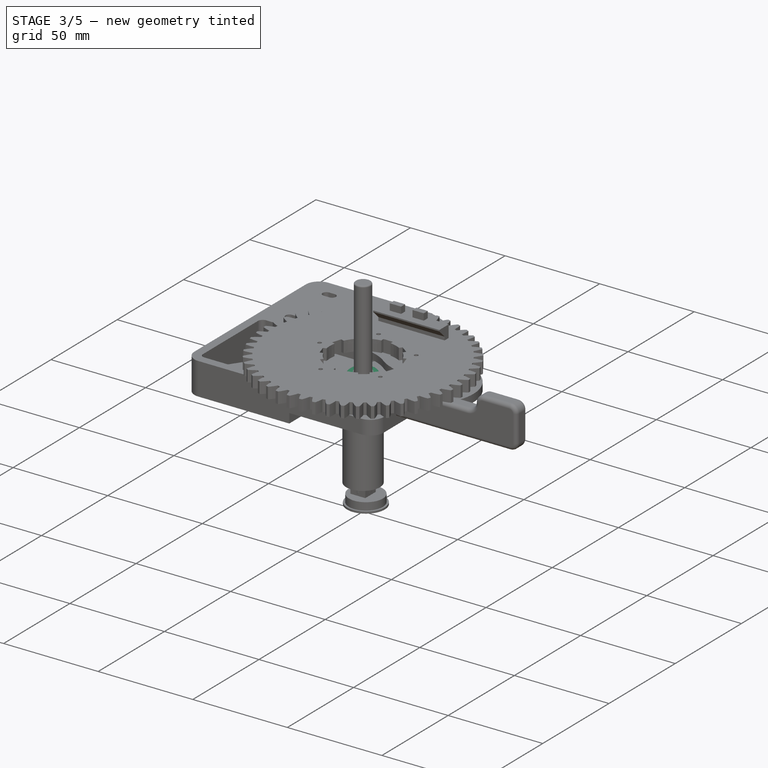
[diagram: stage 3 of 5 — iso view after this stage's code; geometry added in this stage tinted green]
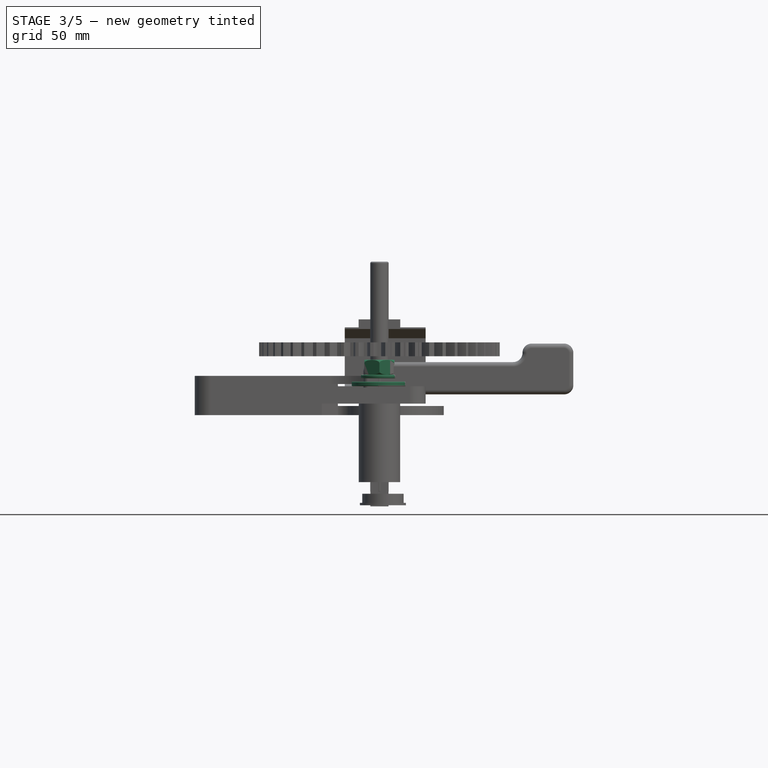
[diagram: stage 3 of 5 — front view after this stage's code; geometry added in this stage tinted green]
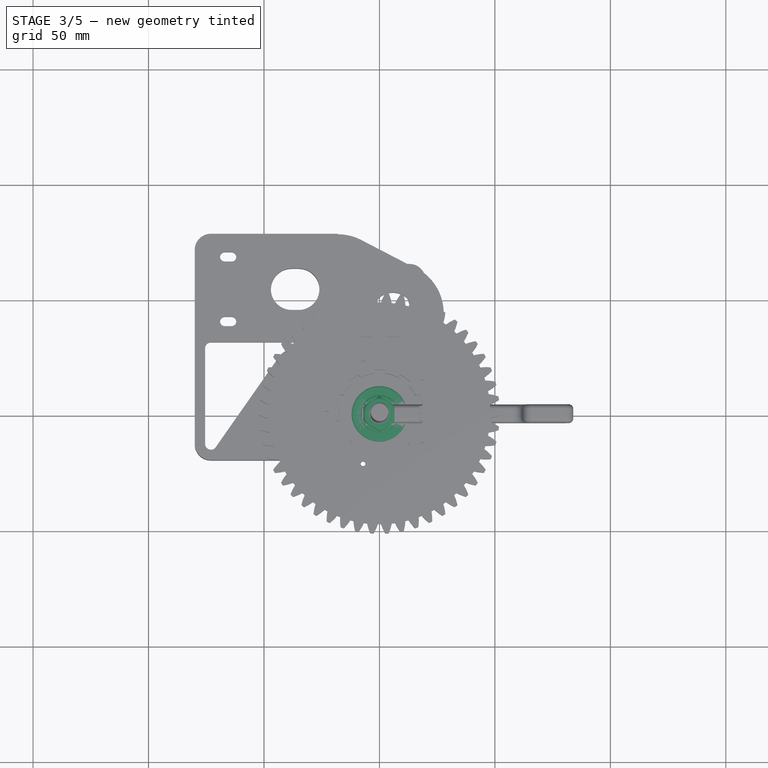
[diagram: stage 3 of 5 — top view after this stage's code; geometry added in this stage tinted green]
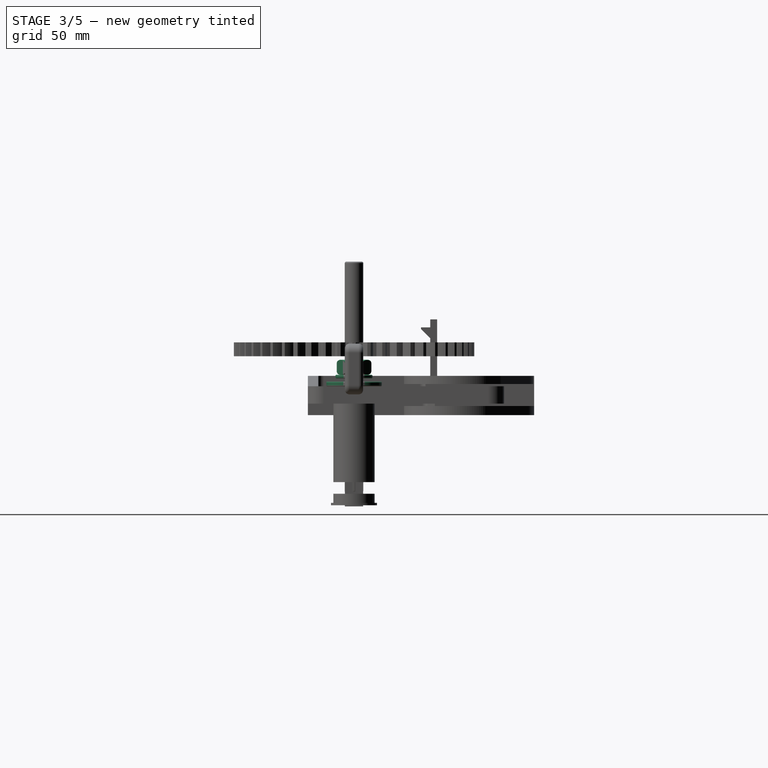
[diagram: stage 3 of 5 — right view after this stage's code; geometry added in this stage tinted green]
FEATURE [App::Part] Part002  label="Z15pin"
  Group = -> [circle4134_1,path4132_9001,path4132_9,Fusion001,circle3747_5,circle3745_3,path4130_2,path6556,Extrude001]
  Origin = -> Origin005
  Placement = pos=(0,-2.3e-15,19) rot=(-0.707107,0.707107,0;3.14159rad)
FEATURE [Sketcher::SketchObject] Sketch011
  FullyConstrained = true
  MapMode = 5
  Support = -> [XY_Plane007]
  sketch-geometry (1):
    g0: Circle CenterX=0 CenterY=0 CenterZ=0 NormalX=0 NormalY=0 NormalZ=1 AngleXU=0 Radius=2.75
  constraints (2):
    c: Coincident(g0,g-1)
    c: Diameter(g0) = 5.5
FEATURE [PartDesign::Pad] Pad006
  Direction = (0,0,1)
  Length = 3
  Length2 = 10
  Profile = -> Sketch011
  ReferenceAxis = -> Sketch011 [N_Axis]
  Type = 0
FEATURE [PartDesign::Body] Body005  label="M3 10mm Inbus "
  BaseFeature = -> Body004
  Group = -> [Clone]
  Origin = -> Origin008
  Tip = -> Clone
FEATURE [App::Part] Part003  label="Motor+Z15"
  Group = -> [Body005,Body004,Part002,Part,Part001,Body002]
  Origin = -> Origin009
  Placement = pos=(-36.5,54,3.5) rot=(0,0,1;0rad)
FEATURE [Sketcher::SketchObject] Sketch014
  FullyConstrained = false
  MapMode = 5
  Support = -> [XY_Plane010]
  sketch-geometry (8):
    g0: LineSegment StartX=6.5 StartY=-3.75278 StartZ=0 EndX=6.5 EndY=3.75278 EndZ=0
    g1: LineSegment StartX=6.5 StartY=3.75278 StartZ=0 EndX=4.0776e-12 EndY=7.50555 EndZ=0
    g2: LineSegment StartX=4.0776e-12 StartY=7.50555 StartZ=0 EndX=-6.5 EndY=3.75278 EndZ=0
    g3: LineSegment StartX=-6.5 StartY=3.75278 StartZ=0 EndX=-6.5 EndY=-3.75278 EndZ=0
    g4: LineSegment StartX=-6.5 StartY=-3.75278 StartZ=0 EndX=3.2552e-12 EndY=-7.50555 EndZ=0
    g5: LineSegment StartX=3.2552e-12 StartY=-7.50555 StartZ=0 EndX=6.5 EndY=-3.75278 EndZ=0
    g6: Circle CenterX=0 CenterY=0 CenterZ=0 NormalX=0 NormalY=0 NormalZ=1 AngleXU=0 Radius=7.50555
    g7: Circle CenterX=0 CenterY=0 CenterZ=0 NormalX=0 NormalY=0 NormalZ=1 AngleXU=0 Radius=12.2031
  constraints (17):
    c: Coincident(g0,g1)
    c: Coincident(g1,g2)
    c: Coincident(g2,g3)
    c: Coincident(g3,g4)
    c: Coincident(g4,g5)
    c: Coincident(g5,g0)
    c: Equal(g0, g1-g5) x5
    c: PointOnObject(g0,g6)
    c: PointOnObject(g1,g6)
    c: PointOnObject(g2,g6)
    c: PointOnObject(g3,g6)
    c: PointOnObject(g4,g6)
    c: PointOnObject(g5,g6)
    c: Coincident(g6,g-1)
    c: Vertical(g0)
    c: DistanceX(g3,g0) = 13
    c: Coincident(g7,g6)
FEATURE [Part::FeaturePython] Tube  # WARN: FeaturePython — macro-defined, semantics opaque (R4)
  AttacherType = Attacher::AttachEngine3D
  Height = 6.5
  InnerRadius = 4
  OuterRadius = 7.5
FEATURE [Part::Fillet] Fillet004
  Base = -> Tube
  Edges = 4 edges: [Edge1 r=1.6,Edge3 r=1.6,Edge4 r=0.4,Edge5 r=0.4]
FEATURE [PartDesign::FeatureBase] BaseFeature
  BaseFeature = -> Fillet004
FEATURE [PartDesign::Pocket] Pocket005
  BaseFeature = -> BaseFeature
  Direction = (0,0,-1)
  Length = 5
  Length2 = 5
  Profile = -> Sketch014
  ReferenceAxis = -> Sketch014 [N_Axis]
  Reversed = true
  Type = 1
FEATURE [PartDesign::Body] Body007  label="Arm-cut"
  Group = -> [Sketch016,Pad009,Chamfer,Fillet005,Chamfer001,Sketch017,Pad010,Pocket006]
  Origin = -> Origin012
  Placement = pos=(-28,0,-14) rot=(0.57735,-0.57735,0.57735;4.18879rad)
  Tip = -> Pocket006
FEATURE [App::Part] Part005  label="MotorMount"
  Group = -> [Part003]
  Origin = -> Origin013
FEATURE [App::Part] Part004  label="Nut M8 DIN934 "
  Group = -> [Tube,Fillet004,Body006]
  Origin = -> Origin011
  Placement = pos=(0,0,-40) rot=(0,0,1;0rad)
FEATURE [Part::FeaturePython] Clone001  label="Nut M8 DIN934 001"  # Draft clone (typed FeaturePython)
  AttacherType = Attacher::AttachEngine3D
  Fuse = false
  Objects = -> [Part004]
  Placement = pos=(0,0,15) rot=(0,0,-1;0.785398rad)
  Scale = (1,1,1)
FEATURE [Part::FeaturePython] Clone002  label="Nut M8 DIN934 002"  # Draft clone (typed FeaturePython)
  AttacherType = Attacher::AttachEngine3D
  Fuse = false
  Objects = -> [Clone001]
  Placement = pos=(0,0,8.5) rot=(0,0,1;0rad)
  Scale = (1,1,1)
FEATURE [Part::FeaturePython] Tube001  # WARN: FeaturePython — macro-defined, semantics opaque (R4)
  AttacherType = Attacher::AttachEngine3D
  Height = 2
  InnerRadius = 4.25
  OuterRadius = 12
FEATURE [Part::Fillet] Fillet006  label="Washer M8 24mm "
  Base = -> Tube001
  Edges = 4 edges r=0.4: [Edge1,Edge3,Edge4,Edge5]
  Placement = pos=(0,0,-33.5) rot=(0,0,1;0rad)
FEATURE [Part::FeaturePython] Clone003  label="Washer M8 24mm 001"  # Draft clone (typed FeaturePython)
  AttacherType = Attacher::AttachEngine3D
  Fuse = false
  Objects = -> [Fillet006]
  Placement = pos=(0,0,3.5) rot=(0,0,1;0rad)
  Scale = (1,1,1)
FEATURE [Part::Fillet] Fillet007  label="Washer M8 "
  Base = -> Tube002
  Edges = 4 edges r=0.4: [Edge1,Edge3,Edge4,Edge5]
  Placement = pos=(0,0,5.5) rot=(0,0,1;0rad)
FEATURE [Part::FeaturePython] Clone004  label="Washer M8 001"  # Draft clone (typed FeaturePython)
  AttacherType = Attacher::AttachEngine3D
  Fuse = false
  Objects = -> [Fillet007]
  Placement = pos=(0,0,7) rot=(0,0,1;0rad)
  Scale = (1,1,1)
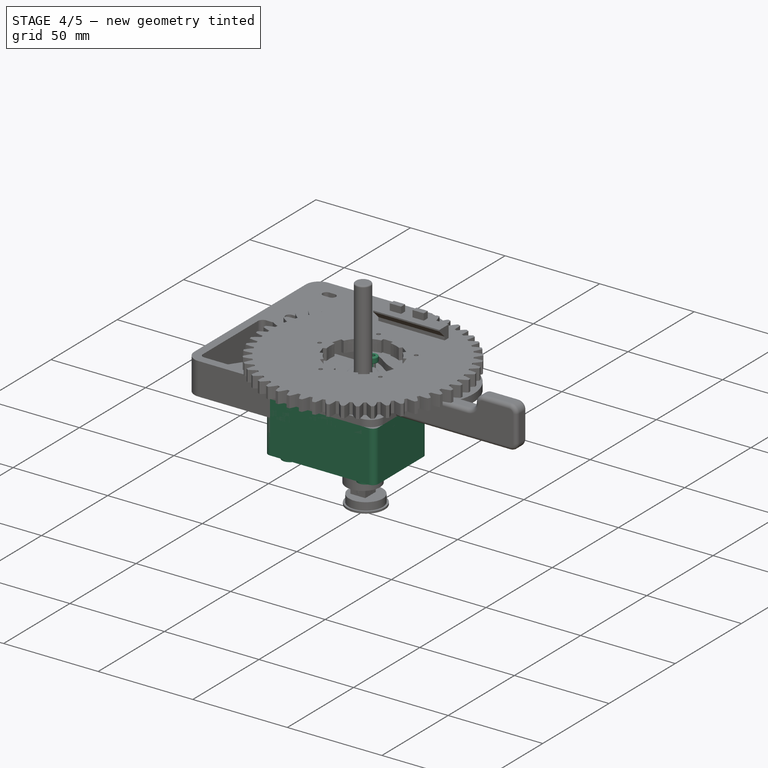
[diagram: stage 4 of 5 — iso view after this stage's code; geometry added in this stage tinted green]
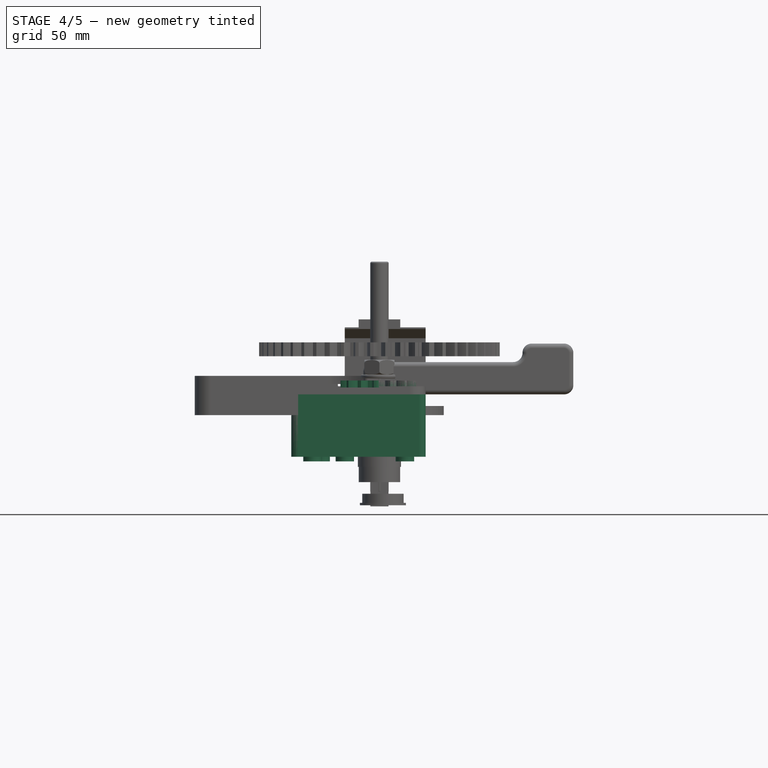
[diagram: stage 4 of 5 — front view after this stage's code; geometry added in this stage tinted green]
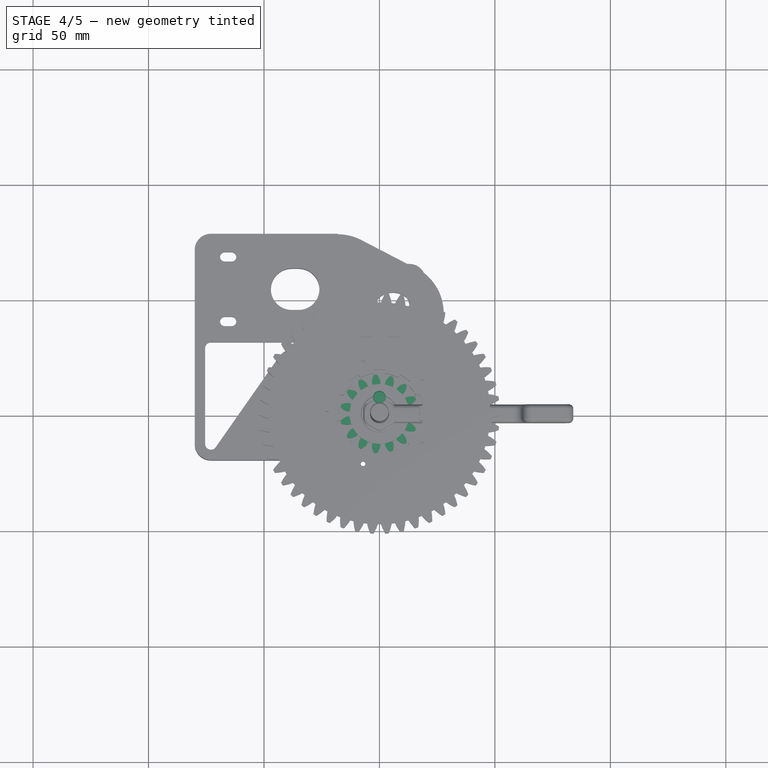
[diagram: stage 4 of 5 — top view after this stage's code; geometry added in this stage tinted green]
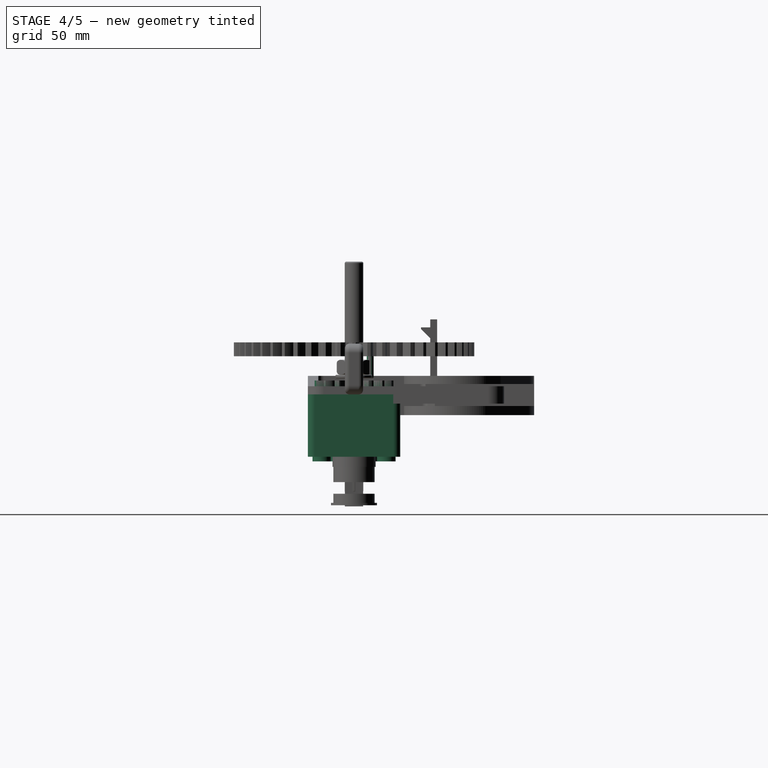
[diagram: stage 4 of 5 — right view after this stage's code; geometry added in this stage tinted green]
FEATURE [Image::ImagePlane] ImagePlane  label="Dimensions-Drawing"
  Placement = pos=(124,0,0) rot=(0,0,1;0rad)
  XSize = 120
  YSize = 125.397
FEATURE [Sketcher::SketchObject] Sketch  label="contour"
  FullyConstrained = true
  MapMode = 5
  Support = -> [XY_Plane]
  sketch-geometry (12):
    g0: LineSegment StartX=-35.2 StartY=20 StartZ=0 EndX=17 EndY=20 EndZ=0
    g1: LineSegment StartX=20 StartY=17 StartZ=0 EndX=20 EndY=-17 EndZ=0
    g2: LineSegment StartX=17 StartY=-20 StartZ=0 EndX=-35.2 EndY=-20 EndZ=0
    g3: LineSegment StartX=-38.2 StartY=-17 StartZ=0 EndX=-38.2 EndY=17 EndZ=0
    g4: ArcOfCircle CenterX=-35.2 CenterY=17 CenterZ=0 NormalX=0 NormalY=0 NormalZ=1 AngleXU=0 Radius=3 StartAngle=1.5708 EndAngle=3.14159
    g5: GeomPoint X=-38.2 Y=20 Z=0
    g6: ArcOfCircle CenterX=17 CenterY=17 CenterZ=0 NormalX=0 NormalY=0 NormalZ=1 AngleXU=0 Radius=3 StartAngle=0 EndAngle=1.5708
    g7: GeomPoint X=20 Y=20 Z=0
    g8: ArcOfCircle CenterX=-35.2 CenterY=-17 CenterZ=0 NormalX=0 NormalY=0 NormalZ=1 AngleXU=0 Radius=3 StartAngle=3.14159 EndAngle=4.71239
    g9: GeomPoint X=-38.2 Y=-20 Z=0
    g10: ArcOfCircle CenterX=17 CenterY=-17 CenterZ=0 NormalX=0 NormalY=0 NormalZ=1 AngleXU=0 Radius=3 StartAngle=4.71239 EndAngle=6.28319
    g11: GeomPoint X=20 Y=-20 Z=0
  constraints (27):
    c: Horizontal(g0)
    c: Horizontal(g2)
    c: Vertical(g3)
    c: Symmetric(g7,g11,g-1)
    c: DistanceX(g-1,g11) = 20
    c: DistanceX(g5,g7) = 58.2
    c: DistanceY(g11,g7) = 40
    c: PointOnObject(g5,g0)
    c: PointOnObject(g5,g3)
    c: Tangent(g0,g4) = 1.5708
    c: Tangent(g3,g4) = 1.5708
    c: PointOnObject(g7,g0)
    c: PointOnObject(g7,g1)
    c: Tangent(g0,g6) = 1.5708
    c: Tangent(g1,g6) = 1.5708
    c: PointOnObject(g9,g2)
    c: PointOnObject(g9,g3)
    c: Tangent(g2,g8) = 1.5708
    c: Tangent(g3,g8) = 1.5708
    c: PointOnObject(g11,g1)
    c: PointOnObject(g11,g2)
    c: Tangent(g1,g10) = 1.5708
    c: Tangent(g2,g10) = 1.5708
    c: Equal(g4,g8)
    c: Equal(g8,g10)
    c: Equal(g10,g6)
    c: Radius(g6) = 3
FEATURE [PartDesign::Pad] Pad
  Direction = (0,0,1)
  Length = 27
  Length2 = 10
  Profile = -> Sketch
  ReferenceAxis = -> Sketch [N_Axis]
  Reversed = true
  Type = 0
FEATURE [Sketcher::SketchObject] Sketch001  label="Mounts"
  FullyConstrained = true
  MapMode = 5
  Support = -> [XY_Plane]
  sketch-geometry (13):
    g0: LineSegment StartX=-29 StartY=14 StartZ=0 EndX=11 EndY=14 EndZ=0
    g1: LineSegment StartX=11 StartY=14 StartZ=0 EndX=11 EndY=-14 EndZ=0
    g2: LineSegment StartX=11 StartY=-14 StartZ=0 EndX=-29 EndY=-14 EndZ=0
    g3: LineSegment StartX=-29 StartY=-14 StartZ=0 EndX=-29 EndY=14 EndZ=0
    g4: ArcOfCircle CenterX=-29 CenterY=14 CenterZ=0 NormalX=0 NormalY=0 NormalZ=1 AngleXU=0 Radius=4 StartAngle=0.785398 EndAngle=3.92699
    g5: ArcOfCircle CenterX=-25.4645 CenterY=10.4645 CenterZ=0 NormalX=0 NormalY=0 NormalZ=1 AngleXU=0 Radius=4 StartAngle=3.92699 EndAngle=7.06858
    g6: LineSegment StartX=-31.8284 StartY=11.1716 StartZ=0 EndX=-28.2929 EndY=7.63604 EndZ=0
    g7: LineSegment StartX=-22.636 StartY=13.2929 StartZ=0 EndX=-26.1716 EndY=16.8284 EndZ=0
    g8: Circle CenterX=11 CenterY=14 CenterZ=0 NormalX=0 NormalY=0 NormalZ=1 AngleXU=0 Radius=4
    g9: Circle CenterX=11 CenterY=-14 CenterZ=0 NormalX=0 NormalY=0 NormalZ=1 AngleXU=0 Radius=4
    g10: Circle CenterX=-29 CenterY=-14 CenterZ=0 NormalX=0 NormalY=0 NormalZ=1 AngleXU=0 Radius=4
    g11: Circle CenterX=-15 CenterY=6 CenterZ=0 NormalX=0 NormalY=0 NormalZ=1 AngleXU=0 Radius=4
    g12: Circle CenterX=-15 CenterY=-6 CenterZ=0 NormalX=0 NormalY=0 NormalZ=1 AngleXU=0 Radius=4
  constraints (31):
    c: Coincident(g0,g1)
    c: Coincident(g1,g2)
    c: Coincident(g2,g3)
    c: Coincident(g3,g0)
    c: Horizontal(g0)
    c: Horizontal(g2)
    c: Vertical(g3)
    c: Symmetric(g0,g1,g-1)
    c: DistanceY(g1,g1) = 28
    c: DistanceX(g2,g2) = 40
    c: DistanceX(g1) = 11
    c: Tangent(g4,g6) = -1.5708
    c: Tangent(g6,g5) = -1.5708
    c: Tangent(g5,g7) = -1.5708
    c: Tangent(g7,g4) = -1.5708
    c: Equal(g4,g5)
    c: Coincident(g4,g0)
    c: Angle(g6) = -0.785398
    c: Radius(g5) = 4
    c: Distance(g7) = 5
    c: Coincident(g8,g0)
    c: Coincident(g9,g1)
    c: Coincident(g10,g2)
    c: Equal(g10,g9)
    c: Equal(g9,g8)
    c: Equal(g8,g5)
    c: Equal(g12,g11)
    c: Symmetric(g11,g12,g-1)
    c: DistanceY(g12,g11) = 12
    c: DistanceX(g12) = -15
    c: Equal(g10,g12)
FEATURE [PartDesign::Pad] Pad001
  BaseFeature = -> Pad
  Direction = (0,0,1)
  Length = 2
  Length2 = 29
  Profile = -> Sketch001
  ReferenceAxis = -> Sketch001 [N_Axis]
  Type = 4
FEATURE [Sketcher::SketchObject] Sketch002  label="Mounting holes M4"
  ExternalGeometry = -> [Sketch001]
  FullyConstrained = true
  MapMode = 5
  Support = -> [XY_Plane]
  sketch-geometry (4):
    g0: Circle CenterX=-29 CenterY=14 CenterZ=0 NormalX=0 NormalY=0 NormalZ=1 AngleXU=0 Radius=2
    g1: Circle CenterX=11 CenterY=14 CenterZ=0 NormalX=0 NormalY=0 NormalZ=1 AngleXU=0 Radius=2
    g2: Circle CenterX=11 CenterY=-14 CenterZ=0 NormalX=0 NormalY=0 NormalZ=1 AngleXU=0 Radius=2
    g3: Circle CenterX=-29 CenterY=-14 CenterZ=0 NormalX=0 NormalY=0 NormalZ=1 AngleXU=0 Radius=2
  constraints (8):
    c: Coincident(g0,g-3)
    c: Coincident(g1,g-6)
    c: Coincident(g2,g-5)
    c: Coincident(g3,g-4)
    c: Equal(g2,g1)
    c: Equal(g1,g0)
    c: Equal(g0,g3)
    c: Diameter(g1) = 4
FEATURE [PartDesign::Pocket] Pocket
  BaseFeature = -> Pad001
  Direction = (0,0,-1)
  Length = 5
  Length2 = 5
  Midplane = true
  Profile = -> Sketch002
  ReferenceAxis = -> Sketch002 [N_Axis]
  Type = 1
FEATURE [Sketcher::SketchObject] Sketch003  label="Bearings"
  FullyConstrained = true
  MapMode = 5
  Support = -> [XY_Plane]
  sketch-geometry (1):
    g0: Circle CenterX=0 CenterY=0 CenterZ=0 NormalX=0 NormalY=0 NormalZ=1 AngleXU=0 Radius=9.35
  constraints (2):
    c: Coincident(g0,g-1)
    c: Diameter(g0) = 18.7
FEATURE [PartDesign::Pad] Pad002
  BaseFeature = -> Pocket
  Direction = (0,0,1)
  Length = 4.4
  Length2 = 31.4
  Profile = -> Sketch003
  ReferenceAxis = -> Sketch003 [N_Axis]
  Type = 4
FEATURE [Sketcher::SketchObject] Sketch004  label="Shaft"
  FullyConstrained = true
  MapMode = 5
  Support = -> [XY_Plane]
  sketch-geometry (1):
    g0: Circle CenterX=0 CenterY=0 CenterZ=0 NormalX=0 NormalY=0 NormalZ=1 AngleXU=0 Radius=4
  constraints (2):
    c: Coincident(g0,g-1)
    c: Diameter(g0) = 8
FEATURE [PartDesign::Pad] Pad003
  BaseFeature = -> Pad002
  Direction = (0,0,1)
  Length = 20
  Length2 = 10
  Profile = -> Sketch004
  ReferenceAxis = -> Sketch004 [N_Axis]
  Type = 0
FEATURE [PartDesign::Body] Body  label="Gearbox"
  Group = -> [Sketch,Pad,Sketch001,Pad001,Sketch002,Pocket,Sketch003,Pad002,Sketch004,Pad003,Sketch005,Pocket001,Fillet002]
  Origin = -> Origin
  Tip = -> Fillet002
FEATURE [App::Part] Part  label="Motor+Gearbox"
  Group = -> [Body,Body001,ImagePlane]
  Origin = -> Origin002
FEATURE [Sketcher::SketchObject] Sketch008
  FullyConstrained = true
  MapMode = 5
  Placement = pos=(0,0,0) rot=(0.57735,0.57735,0.57735;2.0944rad)
  Support = -> [YZ_Plane003]
  sketch-geometry (1):
    g0: Circle CenterX=0 CenterY=0 CenterZ=0 NormalX=0 NormalY=0 NormalZ=1 AngleXU=0 Radius=1.25
  constraints (2):
    c: Coincident(g0,g-1)
    c: Diameter(g0) = 2.5
FEATURE [PartDesign::Pad] Pad005
  Direction = (1,-2e-16,3e-16)
  Length = 16
  Length2 = 10
  Midplane = true
  Placement = pos=(0,0,0) rot=(0.57735,0.57735,0.57735;2.0944rad)
  Profile = -> Sketch008
  ReferenceAxis = -> Sketch008 [N_Axis]
  Type = 0
FEATURE [Sketcher::SketchObject] Sketch009
  FullyConstrained = true
  MapMode = 5
  Support = -> [XY_Plane003]
  sketch-geometry (16):
    g0: LineSegment StartX=-10.7 StartY=0.95 StartZ=0 EndX=-3.9 EndY=0.95 EndZ=0
    g1: LineSegment StartX=-3.9 StartY=0.95 StartZ=0 EndX=-3.9 EndY=7.75 EndZ=0
    g2: LineSegment StartX=-3.9 StartY=7.75 StartZ=0 EndX=2.9 EndY=7.75 EndZ=0
    g3: LineSegment StartX=2.9 StartY=7.75 StartZ=0 EndX=2.9 EndY=0.95 EndZ=0
    g4: LineSegment StartX=2.9 StartY=0.95 StartZ=0 EndX=9.7 EndY=0.95 EndZ=0
    g5: LineSegment StartX=9.7 StartY=0.95 StartZ=0 EndX=9.7 EndY=-0.95 EndZ=0
    g6: LineSegment StartX=9.7 StartY=-0.95 StartZ=0 EndX=2.9 EndY=-0.95 EndZ=0
    g7: LineSegment StartX=2.9 StartY=-0.95 StartZ=0 EndX=2.9 EndY=-7.75 EndZ=0
    g8: LineSegment StartX=2.9 StartY=-7.75 StartZ=0 EndX=-3.9 EndY=-7.75 EndZ=0
    g9: LineSegment StartX=-3.9 StartY=-7.75 StartZ=0 EndX=-3.9 EndY=-0.95 EndZ=0
    g10: LineSegment StartX=-3.9 StartY=-0.95 StartZ=0 EndX=-10.7 EndY=-0.95 EndZ=0
    g11: LineSegment StartX=-10.7 StartY=-0.95 StartZ=0 EndX=-10.7 EndY=0.95 EndZ=0
    g12: LineSegment StartX=-15 StartY=15 StartZ=0 EndX=15 EndY=15 EndZ=0
    g13: LineSegment StartX=15 StartY=15 StartZ=0 EndX=15 EndY=-15 EndZ=0
    g14: LineSegment StartX=15 StartY=-15 StartZ=0 EndX=-15 EndY=-15 EndZ=0
    g15: LineSegment StartX=-15 StartY=-15 StartZ=0 EndX=-15 EndY=15 EndZ=0
  constraints (46):
    c: Horizontal(g0)
    c: Coincident(g0,g1)
    c: Vertical(g1)
    c: Coincident(g1,g2)
    c: Horizontal(g2)
    c: Coincident(g2,g3)
    c: Vertical(g3)
    c: Coincident(g3,g4)
    c: Horizontal(g4)
    c: Coincident(g4,g5)
    c: Vertical(g5)
    c: Coincident(g5,g6)
    c: Horizontal(g6)
    c: Coincident(g6,g7)
    c: Vertical(g7)
    c: Coincident(g7,g8)
    c: Horizontal(g8)
    c: Coincident(g8,g9)
    c: Vertical(g9)
    c: Coincident(g9,g10)
    c: Horizontal(g10)
    c: Coincident(g10,g11)
    c: Coincident(g11,g0)
    c: Vertical(g11)
    c: Equal(g0,g1)
    c: Equal(g1,g2)
    c: Equal(g2,g3)
    c: Equal(g3,g4)
    c: Equal(g4,g6)
    c: Equal(g6,g7)
    c: Symmetric(g9,g0,g-1)
    c: Coincident(g12,g13)
    c: Coincident(g13,g14)
    c: Coincident(g14,g15)
    c: Coincident(g15,g12)
    c: Horizontal(g12)
    c: Horizontal(g14)
    c: Vertical(g13)
    c: Vertical(g15)
    c: Symmetric(g13,g12,g-1)
    c: Equal(g14,g13)
    c: DistanceX(g8,g8) = 6.8
    c: DistanceX(g6) = 2.9
    c: DistanceY(g5,g5) = 1.9
    c: Equal(g9,g7)
    c: DistanceX(g12,g12) = 30
FEATURE [PartDesign::Pocket] Pocket002
  BaseFeature = -> Pad005
  Direction = (0,0,-1)
  Length = 5
  Length2 = 5
  Midplane = true
  Placement = pos=(0,0,0) rot=(0.57735,0.57735,0.57735;2.0944rad)
  Profile = -> Sketch009
  ReferenceAxis = -> Sketch009 [N_Axis]
  Type = 1
FEATURE [PartDesign::Body] Body002  label="Pin"
  Group = -> [Sketch008,Pad005,Sketch009,Pocket002]
  Origin = -> Origin003
  Placement = pos=(0,0,14.26) rot=(0,0,1;0rad)
  Tip = -> Pocket002
FEATURE [Part::Feature] path7124
  shape: bbox 7.898 x 6.967 x 2e-07 mm, 0 faces, 0 solids (baked)
FEATURE [Part::Feature] path3068_9
  shape: bbox 4.189 x 2e-07 x 2e-07 mm, 0 faces, 0 solids (baked)
FEATURE [Part::Feature] path3068_9001
  shape: bbox 2e-07 x 4.189 x 2e-07 mm, 0 faces, 0 solids (baked)
FEATURE [Part::Feature] circle3070_3
  Placement = pos=(36.206,-165.396,0) rot=(0,0,1;0rad)
  shape: bbox 2.208 x 2.415 x 2e-07 mm, 0 faces, 0 solids (baked)
FEATURE [Part::Feature] circle3072_6
  Placement = pos=(22.206,-165.396,0) rot=(0,0,1;0rad)
  shape: bbox 2.208 x 2.415 x 2e-07 mm, 0 faces, 0 solids (baked)
FEATURE [Part::Feature] path4887_0
  shape: bbox 33.95 x 34.12 x 2e-07 mm, 0 faces, 0 solids (baked)
FEATURE [Part::Feature] circle4889_6
  Placement = pos=(95,-85,0) rot=(0,0,1;0rad)
  shape: bbox 33.12 x 36.22 x 2e-07 mm, 0 faces, 0 solids (baked)
FEATURE [Part::MultiFuse] Fusion
  Shapes = -> [path4887_0,circle3072_6,path7124,circle3070_3]
FEATURE [Part::Extrusion] Extrude
  Base = -> Fusion
  Dir = (0,0,1)
  DirMode = 2
  FaceMakerClass = Part::FaceMakerBullseye
  LengthFwd = 6
  LengthRev = 0
  Reversed = true
  Solid = true
  Symmetric = false
FEATURE [App::Part] Part001  label="Z15"
  Group = -> [path3068_9,path3068_9001,circle4889_6,circle3072_6,circle3070_3,path4887_0,Fusion,path7124,Extrude]
  Origin = -> Origin004
  Placement = pos=(0,7e-16,7) rot=(-0.707107,0.707107,0;3.14159rad)
FEATURE [Part::Feature] circle3745_3
  Placement = pos=(102,-45,0) rot=(0,0,1;0rad)
  shape: bbox 2.208 x 2.415 x 2e-07 mm, 0 faces, 0 solids (baked)
FEATURE [Part::Feature] circle3747_5
  Placement = pos=(88,-45,0) rot=(0,0,1;0rad)
  shape: bbox 2.208 x 2.415 x 2e-07 mm, 0 faces, 0 solids (baked)
FEATURE [Part::Feature] path6556
  shape: bbox 7.898 x 15.9 x 2e-07 mm, 0 faces, 0 solids (baked)
FEATURE [Part::Feature] path4130_2
  shape: bbox 33.95 x 34.12 x 2e-07 mm, 0 faces, 0 solids (baked)
FEATURE [Part::Feature] path4132_9
  shape: bbox 4.189 x 2e-07 x 2e-07 mm, 0 faces, 0 solids (baked)
FEATURE [Part::Feature] path4132_9001
  shape: bbox 2e-07 x 4.189 x 2e-07 mm, 0 faces, 0 solids (baked)
FEATURE [Part::Feature] circle4134_1
  Placement = pos=(95,-45,0) rot=(0,0,1;0rad)
  shape: bbox 33.12 x 36.22 x 2e-07 mm, 0 faces, 0 solids (baked)
FEATURE [Part::MultiFuse] Fusion001
  Shapes = -> [path4130_2,circle3747_5,path6556,circle3745_3]
FEATURE [Part::Extrusion] Extrude001
  Base = -> Fusion001
  Dir = (0,0,1)
  DirMode = 2
  FaceMakerClass = Part::FaceMakerBullseye
  LengthFwd = 6
  LengthRev = 0
  Solid = true
  Symmetric = false
FEATURE [Sketcher::SketchObject] Sketch012
  FullyConstrained = true
  MapMode = 5
  Placement = pos=(0,0,3) rot=(0,0,1;0rad)
  Support = -> [Pad006]
  sketch-geometry (7):
    g0: LineSegment StartX=1.25 StartY=-0.721688 StartZ=0 EndX=1.25 EndY=0.721688 EndZ=0
    g1: LineSegment StartX=1.25 StartY=0.721688 StartZ=0 EndX=-2.95e-14 EndY=1.44338 EndZ=0
    g2: LineSegment StartX=-2.95e-14 StartY=1.44338 StartZ=0 EndX=-1.25 EndY=0.721688 EndZ=0
    g3: LineSegment StartX=-1.25 StartY=0.721688 StartZ=0 EndX=-1.25 EndY=-0.721688 EndZ=0
    g4: LineSegment StartX=-1.25 StartY=-0.721688 StartZ=0 EndX=1.459e-13 EndY=-1.44338 EndZ=0
    g5: LineSegment StartX=1.459e-13 StartY=-1.44338 StartZ=0 EndX=1.25 EndY=-0.721688 EndZ=0
    g6: Circle CenterX=0 CenterY=0 CenterZ=0 NormalX=0 NormalY=0 NormalZ=1 AngleXU=0 Radius=1.44338
  constraints (16):
    c: Coincident(g0,g1)
    c: Coincident(g1,g2)
    c: Coincident(g2,g3)
    c: Coincident(g3,g4)
    c: Coincident(g4,g5)
    c: Coincident(g5,g0)
    c: Equal(g0, g1-g5) x5
    c: PointOnObject(g0,g6)
    c: PointOnObject(g1,g6)
    c: PointOnObject(g2,g6)
    c: PointOnObject(g3,g6)
    c: PointOnObject(g4,g6)
    c: PointOnObject(g5,g6)
    c: Coincident(g6,g-1)
    c: Vertical(g0)
    c: DistanceX(g3,g0) = 2.5
FEATURE [PartDesign::Pocket] Pocket004
  BaseFeature = -> Pad006
  Direction = (0,0,-1)
  Length = 2
  Length2 = 5
  Profile = -> Sketch012
  ReferenceAxis = -> Sketch012 [N_Axis]
  Type = 0
FEATURE [Sketcher::SketchObject] Sketch013
  FullyConstrained = true
  MapMode = 5
  Support = -> [XY_Plane007]
  sketch-geometry (1):
    g0: Circle CenterX=0 CenterY=0 CenterZ=0 NormalX=0 NormalY=0 NormalZ=1 AngleXU=0 Radius=1.5
  constraints (2):
    c: Coincident(g0,g-1)
    c: Diameter(g0) = 3
FEATURE [PartDesign::Pad] Pad007
  BaseFeature = -> Pocket004
  Direction = (0,0,1)
  Length = 10
  Length2 = 10
  Profile = -> Sketch013
  ReferenceAxis = -> Sketch013 [N_Axis]
  Reversed = true
  Type = 0
FEATURE [PartDesign::Fillet] Fillet003
  Base = -> Pad007 [Edge3,Edge2,Edge12]
  BaseFeature = -> Pad007
  Radius = 0.5
  SupportTransform = false
  UseAllEdges = false
FEATURE [PartDesign::Body] Body004  label="M3 10mm Inbus"
  Group = -> [Sketch011,Pad006,Sketch012,Pocket004,Sketch013,Pad007,Fillet003]
  Origin = -> Origin007
  Placement = pos=(0,-7,17) rot=(0,0,1;0rad)
  Tip = -> Fillet003
FEATURE [PartDesign::FeatureBase] Clone
  BaseFeature = -> Body004
  Placement = pos=(0,7,17) rot=(0,0,1;0rad)
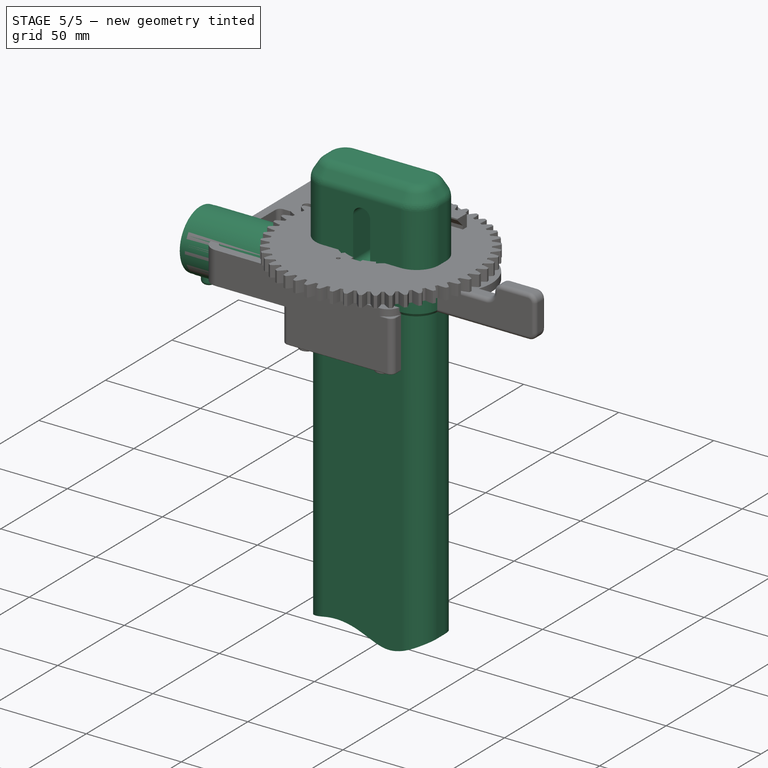
[diagram: stage 5 of 5 — iso view after this stage's code; geometry added in this stage tinted green]
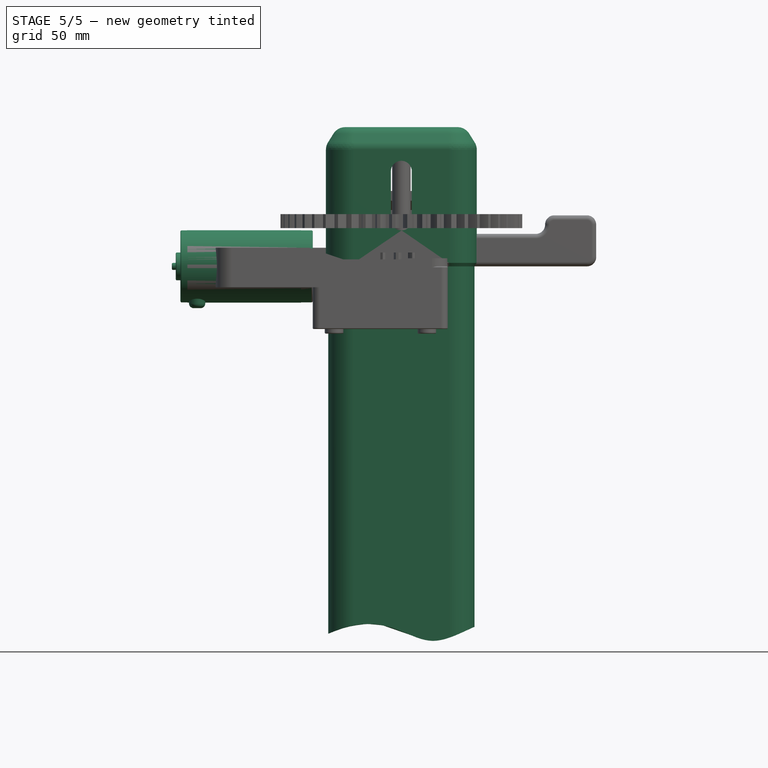
[diagram: stage 5 of 5 — front view after this stage's code; geometry added in this stage tinted green]
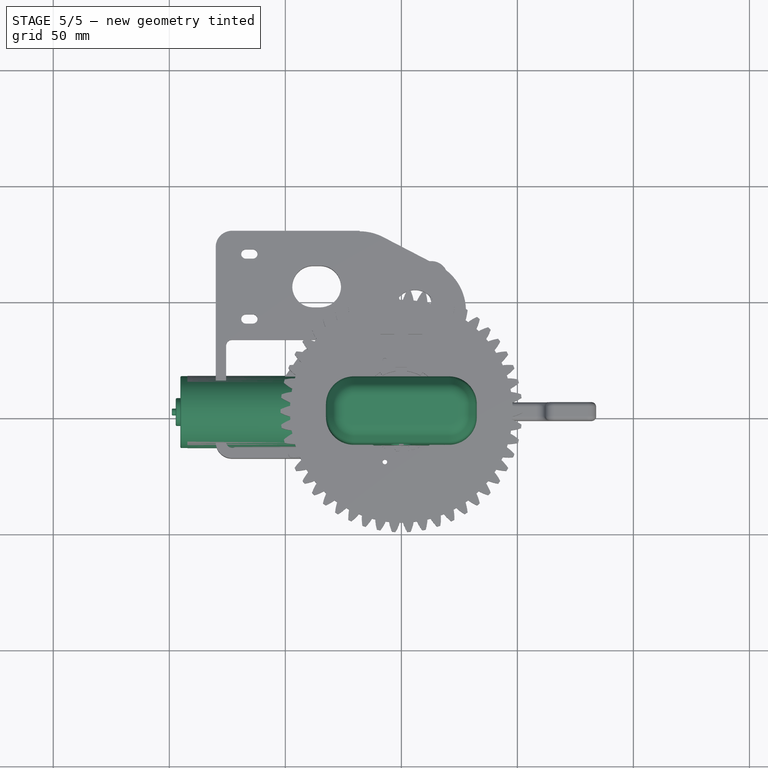
[diagram: stage 5 of 5 — top view after this stage's code; geometry added in this stage tinted green]
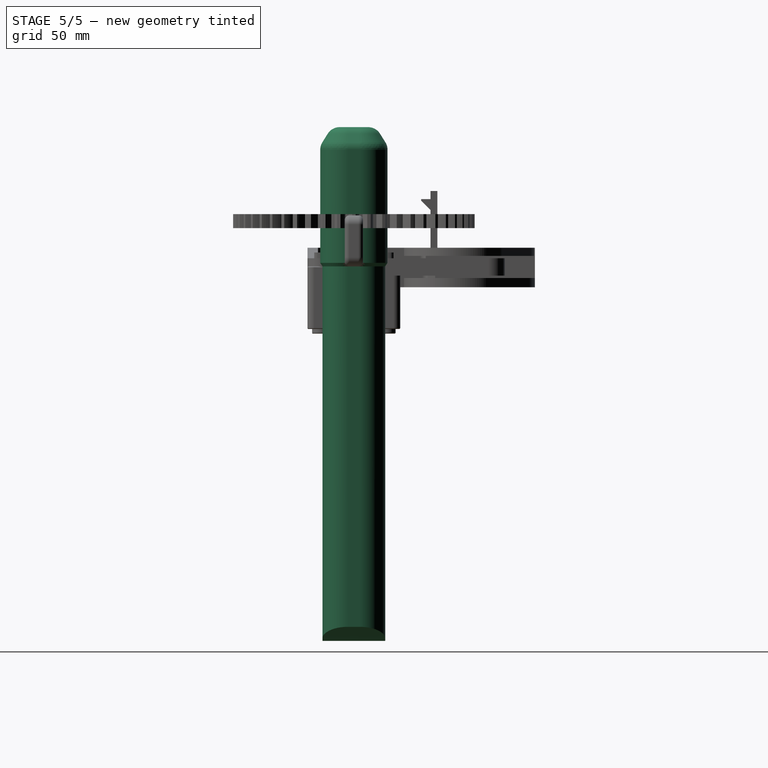
[diagram: stage 5 of 5 — right view after this stage's code; geometry added in this stage tinted green]
FEATURE [Sketcher::SketchObject] Sketch005  label="Plane"
  FullyConstrained = true
  MapMode = 5
  Placement = pos=(0,0,20) rot=(0,0,1;0rad)
  Support = -> [Pad003]
  sketch-geometry (4):
    g0: LineSegment StartX=2.9 StartY=4 StartZ=0 EndX=10.9 EndY=4 EndZ=0
    g1: LineSegment StartX=10.9 StartY=4 StartZ=0 EndX=10.9 EndY=-4 EndZ=0
    g2: LineSegment StartX=10.9 StartY=-4 StartZ=0 EndX=2.9 EndY=-4 EndZ=0
    g3: LineSegment StartX=2.9 StartY=-4 StartZ=0 EndX=2.9 EndY=4 EndZ=0
  constraints (11):
    c: Coincident(g0,g1)
    c: Coincident(g1,g2)
    c: Coincident(g2,g3)
    c: Coincident(g3,g0)
    c: Horizontal(g0)
    c: Horizontal(g2)
    c: Vertical(g1)
    c: DistanceY(g1,g1) = 8
    c: Equal(g1,g2)
    c: Symmetric(g2,g0,g-1)
    c: DistanceX(g2) = 2.9
FEATURE [PartDesign::Pocket] Pocket001
  BaseFeature = -> Pad003
  Direction = (0,0,-1)
  Length = 13
  Length2 = 5
  Profile = -> Sketch005
  ReferenceAxis = -> Sketch005 [N_Axis]
  Type = 0
FEATURE [Sketcher::SketchObject] Sketch006
  FullyConstrained = true
  MapMode = 5
  Support = -> [XY_Plane001]
  sketch-geometry (14):
    g0: LineSegment StartX=-38.2 StartY=0 StartZ=0 EndX=-38.2 EndY=15.5 EndZ=0
    g1: LineSegment StartX=-38.2 StartY=15.5 StartZ=0 EndX=-43.2 EndY=15.5 EndZ=0
    g2: LineSegment StartX=-43.2 StartY=15.5 StartZ=0 EndX=-43.2 EndY=15.6 EndZ=0
    g3: LineSegment StartX=-43.2 StartY=15.6 StartZ=0 EndX=-92.2 EndY=15.6 EndZ=0
    g4: LineSegment StartX=-92.2 StartY=15.6 StartZ=0 EndX=-92.2 EndY=15.5 EndZ=0
    g5: LineSegment StartX=-92.2 StartY=15.5 StartZ=0 EndX=-95.2 EndY=15.5 EndZ=0
    g6: LineSegment StartX=-95.2 StartY=15.5 StartZ=0 EndX=-95.2 EndY=6 EndZ=0
    g7: LineSegment StartX=-95.2 StartY=6 StartZ=0 EndX=-97.2 EndY=6 EndZ=0
    g8: LineSegment StartX=-96.7 StartY=1.5 StartZ=0 EndX=-98.9 EndY=1.5 EndZ=0
    g9: LineSegment StartX=-98.9 StartY=1.5 StartZ=0 EndX=-98.9 EndY=0 EndZ=0
    g10: LineSegment StartX=-98.9 StartY=0 StartZ=0 EndX=-38.2 EndY=0 EndZ=0
    g11: LineSegment StartX=-97.2 StartY=6 StartZ=0 EndX=-97.2 EndY=2 EndZ=0
    g12: LineSegment StartX=-97.2 StartY=2 StartZ=0 EndX=-96.7 EndY=2 EndZ=0
    g13: LineSegment StartX=-96.7 StartY=2 StartZ=0 EndX=-96.7 EndY=1.5 EndZ=0
  constraints (42):
    c: PointOnObject(g0,g-1)
    c: Vertical(g0)
    c: Coincident(g0,g1)
    c: Horizontal(g1)
    c: Coincident(g1,g2)
    c: Coincident(g2,g3)
    c: Horizontal(g3)
    c: Coincident(g3,g4)
    c: Vertical(g4)
    c: Coincident(g4,g5)
    c: Horizontal(g5)
    c: Coincident(g5,g6)
    c: Vertical(g6)
    c: Coincident(g6,g7)
    c: Horizontal(g7)
    c: Horizontal(g8)
    c: Coincident(g8,g9)
    c: PointOnObject(g9,g-1)
    c: Vertical(g9)
    c: Coincident(g9,g10)
    c: Coincident(g10,g0)
    c: Vertical(g2)
    c: DistanceX(g1,g1) = 5
    c: DistanceX(g5,g5) = 3
    c: DistanceX(g5,g0) = 57
    c: DistanceX(g7,g7) = 2
    c: Horizontal(g1,g4)
    c: DistanceY(g2,g2) = 0.1
    c: DistanceY(g6) = 6
    c: DistanceY(g8) = 1.5
    c: DistanceX(g8,g7) = 1.7
    c: Coincident(g7,g11)
    c: Vertical(g11)
    c: Coincident(g11,g12)
    c: Coincident(g12,g13)
    c: Vertical(g13)
    c: Horizontal(g12)
    c: Coincident(g13,g8)
    c: Equal(g13,g12)
    c: DistanceY(g13,g13) = 0.5
    c: DistanceY(g5) = 15.5
    c: DistanceX(g0,g-1) = 38.2
FEATURE [PartDesign::Revolution] Revolution
  Angle = 360
  Axis = (1,0,0)
  Base = (0,0,0)
  Profile = -> Sketch006
  ReferenceAxis = -> Sketch006 [H_Axis]
FEATURE [Sketcher::SketchObject] Sketch007
  FullyConstrained = true
  MapMode = 5
  Support = -> [XY_Plane001]
  sketch-geometry (1):
    g0: Circle CenterX=-88 CenterY=-3.5 CenterZ=0 NormalX=0 NormalY=0 NormalZ=1 AngleXU=0 Radius=3.5
  constraints (3):
    c: Diameter(g0) = 7
    c: DistanceY(g0) = -3.5
    c: DistanceX(g0) = -88
FEATURE [PartDesign::Pad] Pad004
  BaseFeature = -> Revolution
  Direction = (0,0,1)
  Length = 18
  Length2 = 10
  Profile = -> Sketch007
  ReferenceAxis = -> Sketch007 [N_Axis]
  Reversed = true
  Type = 0
FEATURE [PartDesign::Fillet] Fillet
  Base = -> Pad004 [Edge10]
  BaseFeature = -> Pad004
  Radius = 2
  SupportTransform = false
  UseAllEdges = false
FEATURE [PartDesign::Fillet] Fillet001
  Base = -> Fillet [Edge11,Edge13,Edge16,Edge22]
  BaseFeature = -> Fillet
  Radius = 0.5
  SupportTransform = false
  UseAllEdges = false
FEATURE [PartDesign::Body] Body001  label="Motor"
  Group = -> [Sketch006,Revolution,Sketch007,Pad004,Fillet,Fillet001]
  Origin = -> Origin001
  Placement = pos=(0,-0.5,-17.9) rot=(0,0,1;0rad)
  Tip = -> Fillet001
FEATURE [PartDesign::Fillet] Fillet002
  Base = -> Pocket001 [Edge11,Edge57,Edge78,Edge69,Edge71,Edge81,Edge27,Edge92,Edge93,Edge83,Edge67,Edge91,Edge65,Edge90,Edge50,Edge86,Edge100,Edge62,Edge64,Edge89,Edge52,Edge48,Edge87,Edge46,Edge85]
  BaseFeature = -> Pocket001
  Radius = 0.5
  SupportTransform = false
  UseAllEdges = false
FEATURE [PartDesign::Body] Body006
  BaseFeature = -> Fillet004
  Group = -> [BaseFeature,Sketch014,Pocket005]
  Origin = -> Origin010
  Tip = -> Pocket005
FEATURE [Sketcher::SketchObject] Sketch016
  FullyConstrained = true
  MapMode = 5
  Support = -> [XY_Plane012]
  sketch-geometry (12):
    g0: LineSegment StartX=-20.5 StartY=14.5 StartZ=0 EndX=20.5 EndY=14.5 EndZ=0
    g1: LineSegment StartX=32.5 StartY=2.5 StartZ=0 EndX=32.5 EndY=-2.5 EndZ=0
    g2: LineSegment StartX=20.5 StartY=-14.5 StartZ=0 EndX=-20.5 EndY=-14.5 EndZ=0
    g3: LineSegment StartX=-32.5 StartY=-2.5 StartZ=0 EndX=-32.5 EndY=2.5 EndZ=0
    g4: ArcOfCircle CenterX=20.5 CenterY=2.5 CenterZ=0 NormalX=0 NormalY=0 NormalZ=1 AngleXU=0 Radius=12 StartAngle=0 EndAngle=1.5708
    g5: GeomPoint X=32.5 Y=14.5 Z=0
    g6: ArcOfCircle CenterX=20.5 CenterY=-2.5 CenterZ=0 NormalX=0 NormalY=0 NormalZ=1 AngleXU=0 Radius=12 StartAngle=4.71239 EndAngle=6.28319
    g7: GeomPoint X=32.5 Y=-14.5 Z=0
    g8: ArcOfCircle CenterX=-20.5 CenterY=-2.5 CenterZ=0 NormalX=0 NormalY=0 NormalZ=1 AngleXU=0 Radius=12 StartAngle=3.14159 EndAngle=4.71239
    g9: GeomPoint X=-32.5 Y=-14.5 Z=0
    g10: ArcOfCircle CenterX=-20.5 CenterY=2.5 CenterZ=0 NormalX=0 NormalY=0 NormalZ=1 AngleXU=0 Radius=12 StartAngle=1.5708 EndAngle=3.14159
    g11: GeomPoint X=-32.5 Y=14.5 Z=0
  constraints (27):
    c: Horizontal(g0)
    c: Horizontal(g2)
    c: Vertical(g1)
    c: Vertical(g3)
    c: Symmetric(g11,g7,g-1)
    c: PointOnObject(g5,g0)
    c: PointOnObject(g5,g1)
    c: Tangent(g0,g4) = 1.5708
    c: Tangent(g1,g4) = 1.5708
    c: PointOnObject(g7,g1)
    c: PointOnObject(g7,g2)
    c: Tangent(g1,g6) = 1.5708
    c: Tangent(g2,g6) = 1.5708
    c: PointOnObject(g9,g2)
    c: PointOnObject(g9,g3)
    c: Tangent(g2,g8) = 1.5708
    c: Tangent(g3,g8) = 1.5708
    c: PointOnObject(g11,g0)
    c: PointOnObject(g11,g3)
    c: Tangent(g0,g10) = 1.5708
    c: Tangent(g3,g10) = 1.5708
    c: Equal(g10,g8)
    c: Equal(g8,g6)
    c: Equal(g6,g4)
    c: Radius(g4) = 12
    c: DistanceY(g9,g11) = 29
    c: DistanceX(g9,g7) = 65
FEATURE [PartDesign::Pad] Pad009
  Direction = (0,0,1)
  Length = 60
  Length2 = 100
  Profile = -> Sketch016
  ReferenceAxis = -> Sketch016 [N_Axis]
  Type = 0
FEATURE [PartDesign::Chamfer] Chamfer
  Angle = 45
  Base = -> Pad009 [Edge16]
  BaseFeature = -> Pad009
  ChamferType = 1
  FlipDirection = false
  Size = 8
  Size2 = 5
  SupportTransform = false
  UseAllEdges = false
FEATURE [PartDesign::Fillet] Fillet005
  Base = -> Chamfer [Edge34,Edge23]
  BaseFeature = -> Chamfer
  Radius = 6
  SupportTransform = false
  UseAllEdges = false
FEATURE [PartDesign::Chamfer] Chamfer001
  Angle = 45
  Base = -> Fillet005 [Edge11]
  BaseFeature = -> Fillet005
  ChamferType = 1
  FlipDirection = false
  Size = 1
  Size2 = 1.5
  SupportTransform = false
  UseAllEdges = false
FEATURE [Sketcher::SketchObject] Sketch017
  FullyConstrained = false
  MapMode = 5
  Placement = pos=(0,0,0) rot=(1,0,0;1.5708rad)
  Support = -> [XZ_Plane012]
  sketch-geometry (17):
    g0-g6: Circle x7 (B-spline internal-alignment scaffolding for g7; pole/knot coordinates omitted)
    g7: BSplineCurve PolesCount=7 KnotsCount=5 Degree=3 IsPeriodic=0
    g8-g12: GeomPoint x5 (B-spline internal-alignment scaffolding for g7; pole/knot coordinates omitted)
    g13: ArcOfCircle CenterX=0 CenterY=41 CenterZ=0 NormalX=0 NormalY=0 NormalZ=1 AngleXU=0 Radius=4.5 StartAngle=3e-16 EndAngle=3.14159
    g14: ArcOfCircle CenterX=0 CenterY=20 CenterZ=0 NormalX=0 NormalY=0 NormalZ=1 AngleXU=0 Radius=4.5 StartAngle=3.1416 EndAngle=6.28318
    g15: LineSegment StartX=-4.5 StartY=41 StartZ=0 EndX=-4.5 EndY=20 EndZ=0
    g16: LineSegment StartX=4.5 StartY=20 StartZ=0 EndX=4.5 EndY=41 EndZ=0
  constraints (17):
    c: Weight(g0) = 1
    c: Equal(g0, g1-g6) x6
    c: Coincident(g6,g0)
    c: InternalAlignment(g0-g6 -> g7) x7
    c: InternalAlignment(g8-g12 -> g7) x5
    c: Tangent(g13,g15) = -1.5708
    c: Tangent(g16,g13) = -1.5708
    c: Equal(g13,g14)
    c: PointOnObject(g13,g-2)
    c: PointOnObject(g14,g-2)
    c: Vertical(g15)
    c: Radius(g14) = 4.5
    c: Coincident(g16,g14)
    c: Vertical(g16)
    c: DistanceY(g16,g16) = 21
    c: Coincident(g15,g14)
    c: DistanceY(g14) = 20
FEATURE [PartDesign::Pad] Pad010
  BaseFeature = -> Chamfer001
  Direction = (0,0,-1)
  Length = 250
  Length2 = 10
  Profile = -> Chamfer001 [Face10]
  Type = 0
FEATURE [PartDesign::Pocket] Pocket006
  BaseFeature = -> Pad010
  Direction = (0,1,2e-16)
  Length = 5
  Length2 = 5
  Midplane = true
  Profile = -> Sketch017
  ReferenceAxis = -> Sketch017 [N_Axis]
  Type = 1
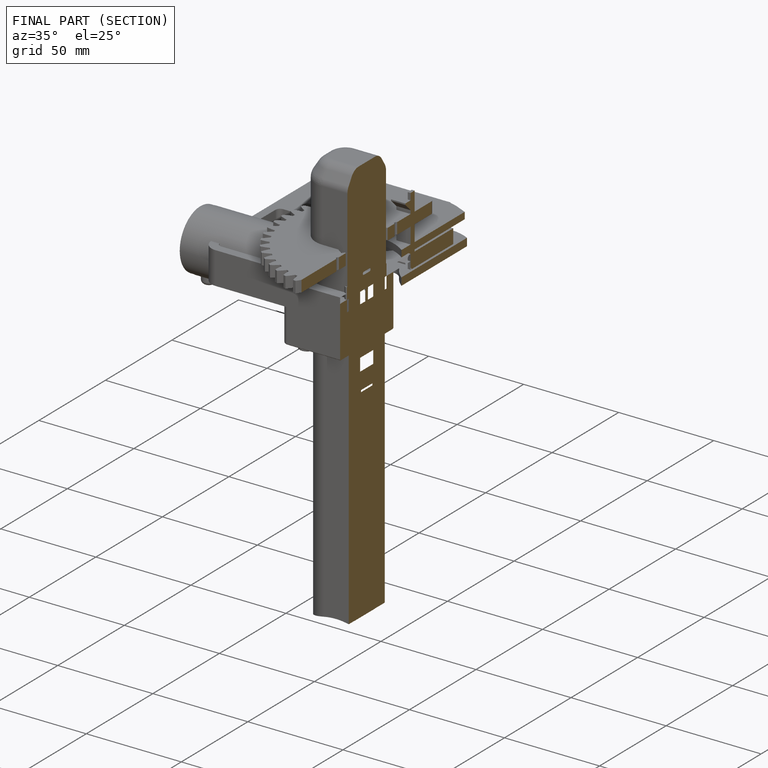
[diagram: finished part — half-section view (interior)]
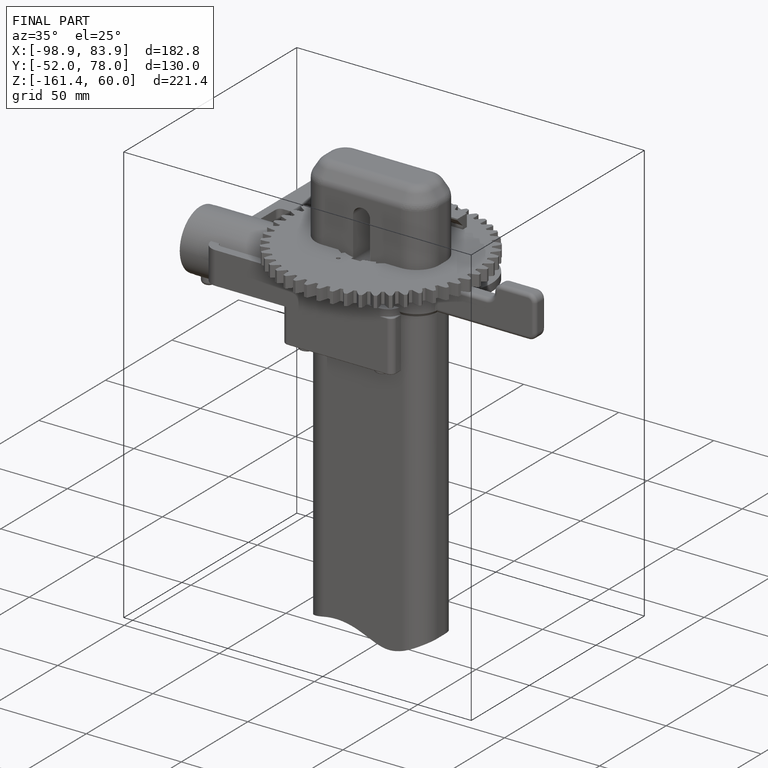
[diagram: finished part — iso view with bounding-box wireframe]
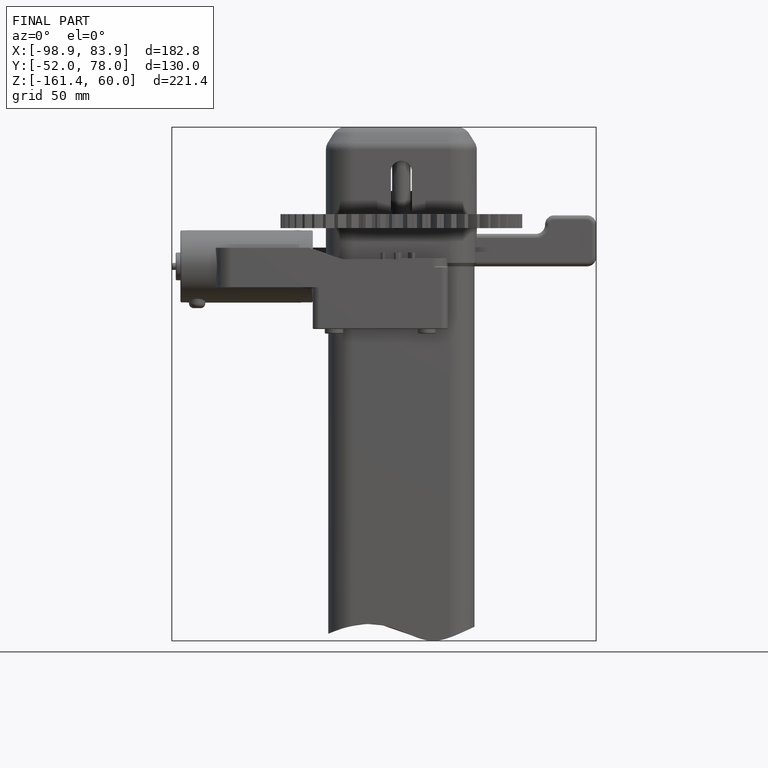
[diagram: finished part — front view with bounding-box wireframe]
